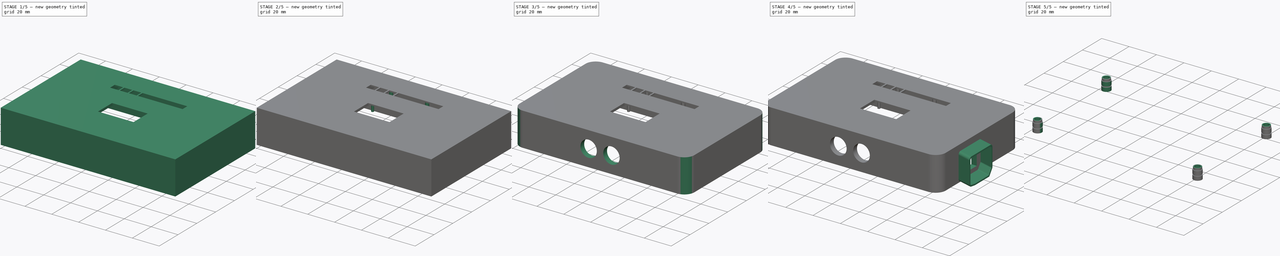
[diagram: build sequence overview — one tinted view per stage of 5, left to right]
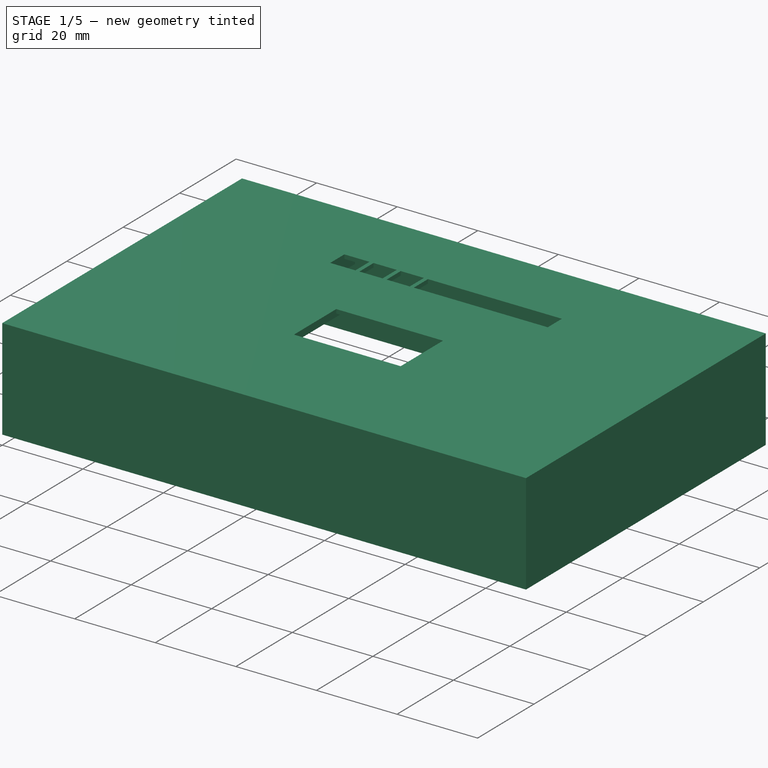
[diagram: stage 1 of 5 — iso view after this stage's code; geometry added in this stage tinted green]
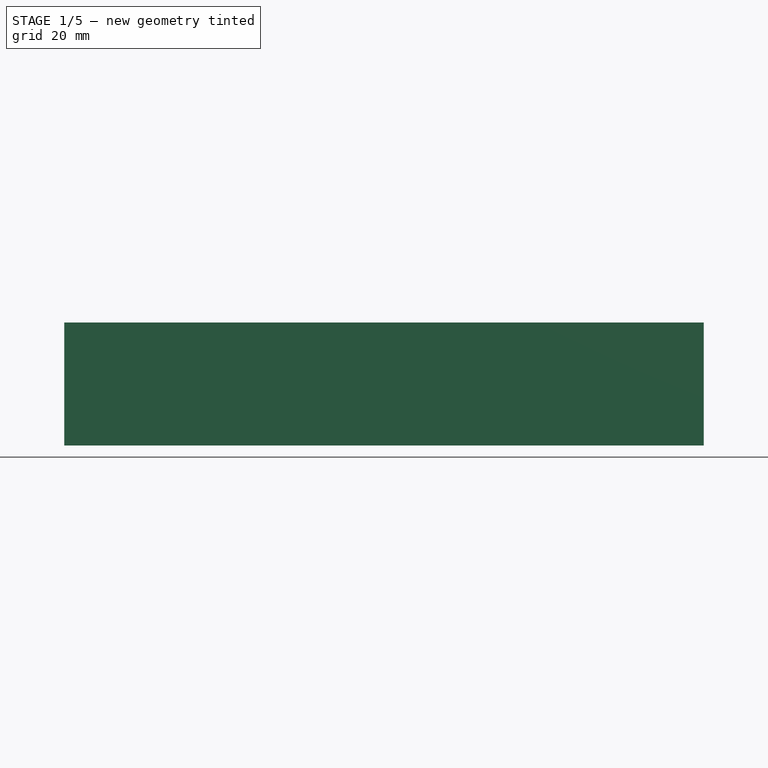
[diagram: stage 1 of 5 — front view after this stage's code; geometry added in this stage tinted green]
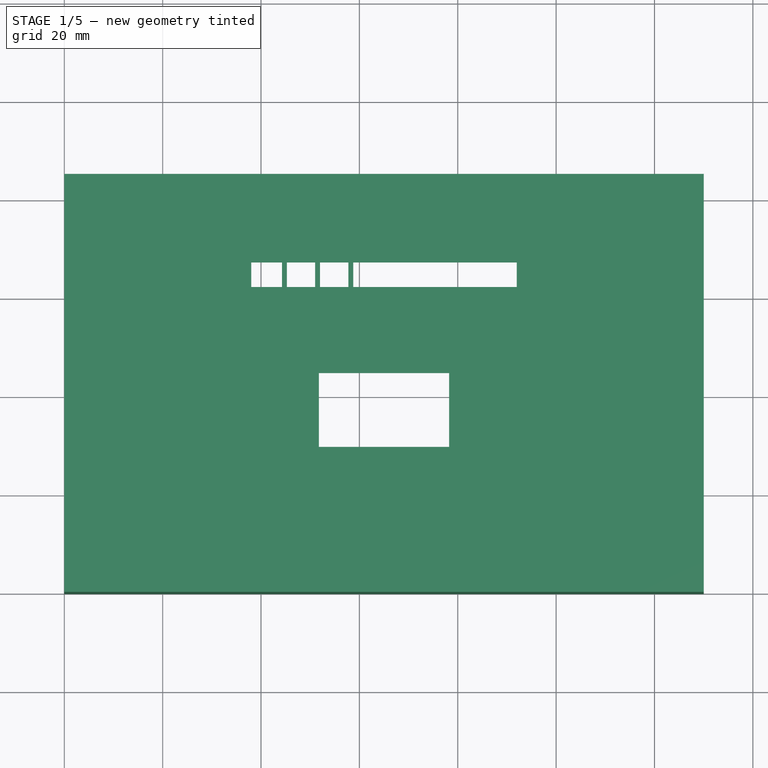
[diagram: stage 1 of 5 — top view after this stage's code; geometry added in this stage tinted green]
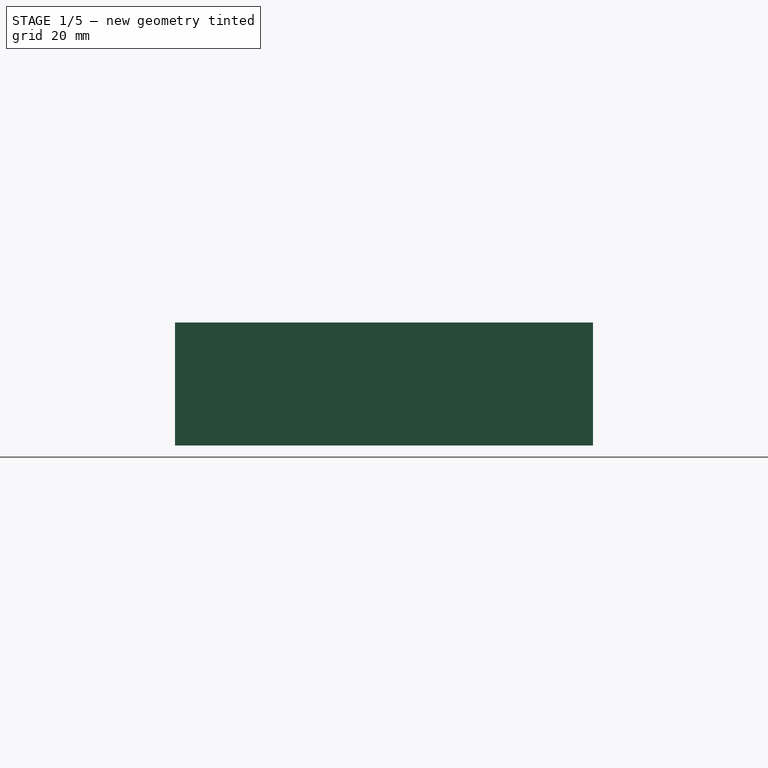
[diagram: stage 1 of 5 — right view after this stage's code; geometry added in this stage tinted green]
FCSTD DOCUMENT  (FreeCAD 0.20R27936 (Git))
Label: FrontPart
License: All rights reserved
LicenseURL: http://en.wikipedia.org/wiki/All_rights_reserved
objects: Sketcher::SketchObject×13, PartDesign::Line×11, PartDesign::Pocket×9, PartDesign::CoordinateSystem×5, Part::FeaturePython×4, PartDesign::Pad×3, PartDesign::ShapeBinder×2, PartDesign::AdditiveBox×1, PartDesign::Fillet×1, PartDesign::Body×1, App::Part×1
note: 64 computed .brp shape members not serialized (recipe doc carries the construction recipe); baked Part::Feature solids carry a one-line shape summary decoded from their .brp

FEATURE [PartDesign::AdditiveBox] Box002
  AttacherType = Attacher::AttachEngine3D
  Height = 25
  Length = 130
  Width = 85
FEATURE [Sketcher::SketchObject] Sketch001
  ExternalGeometry = -> [Box002]
  FullyConstrained = true
  MapMode = 5
  Placement = pos=(0,0,0) rot=(1,0,0;3.14159rad)
  Support = -> [Box002]
  sketch-geometry (23):
    g0: LineSegment StartX=15.8322 StartY=-4 StartZ=0 EndX=114.168 EndY=-4 EndZ=0
    g1: LineSegment StartX=126 StartY=-15.8322 StartZ=0 EndX=126 EndY=-69.1678 EndZ=0
    g2: LineSegment StartX=114.168 StartY=-81 StartZ=0 EndX=15.8322 EndY=-81 EndZ=0
    g3: LineSegment StartX=4 StartY=-69.1678 StartZ=0 EndX=4 EndY=-15.8322 EndZ=0
    g4: GeomPoint X=4 Y=-4 Z=0
    g5: GeomPoint X=126 Y=-81 Z=0
    g6: GeomPoint X=65 Y=-42.5 Z=0
    g7: ArcOfCircle CenterX=4 CenterY=-81 CenterZ=0 NormalX=0 NormalY=0 NormalZ=1 AngleXU=0 Radius=10 StartAngle=0.167448 EndAngle=1.40335
    g8: ArcOfCircle CenterX=6 CenterY=-69.1678 CenterZ=0 NormalX=0 NormalY=0 NormalZ=1 AngleXU=0 Radius=2 StartAngle=3.14159 EndAngle=4.54494
    g9: ArcOfCircle CenterX=15.8322 CenterY=-79 CenterZ=0 NormalX=0 NormalY=0 NormalZ=1 AngleXU=0 Radius=2 StartAngle=3.30904 EndAngle=4.71239
    g10: ArcOfCircle CenterX=4 CenterY=-4 CenterZ=0 NormalX=0 NormalY=0 NormalZ=1 AngleXU=0 Radius=10 StartAngle=4.87984 EndAngle=6.11574
    g11: ArcOfCircle CenterX=126 CenterY=-4 CenterZ=0 NormalX=0 NormalY=0 NormalZ=1 AngleXU=0 Radius=10 StartAngle=3.30904 EndAngle=4.54494
    g12: ArcOfCircle CenterX=126 CenterY=-81 CenterZ=0 NormalX=0 NormalY=0 NormalZ=1 AngleXU=0 Radius=10 StartAngle=1.73824 EndAngle=2.97414
    g13: LineSegment StartX=4 StartY=-81 StartZ=0 EndX=126 EndY=-81 EndZ=0
    g14: LineSegment StartX=126 StartY=-81 StartZ=0 EndX=126 EndY=-4 EndZ=0
    g15: LineSegment StartX=126 StartY=-4 StartZ=0 EndX=4 EndY=-4 EndZ=0
    g16: LineSegment StartX=4 StartY=-4 StartZ=0 EndX=4 EndY=-81 EndZ=0
    g17: ArcOfCircle CenterX=6 CenterY=-15.8322 CenterZ=0 NormalX=0 NormalY=0 NormalZ=1 AngleXU=0 Radius=2 StartAngle=1.73824 EndAngle=3.14159
    g18: ArcOfCircle CenterX=124 CenterY=-15.8322 CenterZ=0 NormalX=0 NormalY=0 NormalZ=1 AngleXU=0 Radius=2 StartAngle=0 EndAngle=1.40335
    g19: ArcOfCircle CenterX=15.8322 CenterY=-6 CenterZ=0 NormalX=0 NormalY=0 NormalZ=1 AngleXU=0 Radius=2 StartAngle=1.5708 EndAngle=2.97414
    g20: ArcOfCircle CenterX=114.168 CenterY=-6 CenterZ=0 NormalX=0 NormalY=0 NormalZ=1 AngleXU=0 Radius=2 StartAngle=0.167448 EndAngle=1.5708
    g21: ArcOfCircle CenterX=124 CenterY=-69.1678 CenterZ=0 NormalX=0 NormalY=0 NormalZ=1 AngleXU=0 Radius=2 StartAngle=4.87984 EndAngle=6.28319
    g22: ArcOfCircle CenterX=114.168 CenterY=-79 CenterZ=0 NormalX=0 NormalY=0 NormalZ=1 AngleXU=0 Radius=2 StartAngle=4.71239 EndAngle=6.11574
  constraints (56):
    c: Horizontal(g0)
    c: Horizontal(g2)
    c: Vertical(g1)
    c: Vertical(g3)
    c: PointOnObject(g4,g0)
    c: PointOnObject(g4,g3)
    c: PointOnObject(g5,g1)
    c: PointOnObject(g5,g2)
    c: Symmetric(g-6,g-4,g6)
    c: Tangent(g7,g8) = 1.5708
    c: Tangent(g3,g8) = 1.5708
    c: Tangent(g2,g9) = 1.5708
    c: Tangent(g7,g9) = 1.5708
    c: Coincident(g12,g5)
    c: Coincident(g13,g14)
    c: Coincident(g14,g15)
    c: Coincident(g15,g16)
    c: Coincident(g16,g13)
    c: Horizontal(g13)
    c: Horizontal(g15)
    c: Vertical(g14)
    c: Vertical(g16)
    c: Coincident(g13,g7)
    c: Coincident(g14,g11)
    c: Coincident(g4,g10)
    c: Symmetric(g7,g11,g6)
    c: Tangent(g3,g17) = 1.5708
    c: Tangent(g10,g17) = 1.5708
    c: Tangent(g1,g18) = 1.5708
    c: Tangent(g11,g18) = 1.5708
    c: Tangent(g10,g19) = 1.5708
    c: Tangent(g0,g19) = 1.5708
    c: Tangent(g11,g20) = 1.5708
    c: Tangent(g0,g20) = 1.5708
    c: Tangent(g1,g21) = 1.5708
    c: Tangent(g12,g21) = 1.5708
    c: Tangent(g2,g22) = 1.5708
    c: Tangent(g12,g22) = 1.5708
    c: PointOnObject(g0,g15)
    c: PointOnObject(g3,g16)
    c: PointOnObject(g1,g14)
    c: DistanceX(g-6,g7) = 4
    c: DistanceY(g-6,g7) = 4
    c: PointOnObject(g2,g13)
    c: Equal(g7,g10)
    c: Equal(g10,g11)
    c: Equal(g11,g12)
    c: Radius(g7) = 10
    c: Equal(g9,g8)
    c: Equal(g8,g19)
    c: Equal(g19,g17)
    c: Equal(g17,g20)
    c: Equal(g20,g18)
    c: Equal(g18,g21)
    c: Equal(g21,g22)
    c: Radius(g9) = 2
FEATURE [PartDesign::Pocket] Pocket001
  BaseFeature = -> Box002
  Direction = (0,0,1)
  Length = 21
  Length2 = 100
  Profile = -> Sketch001
  ReferenceAxis = -> Sketch001 [N_Axis]
  Type = 0
  expr: Length = <<Box002>>.Height - 4mm
FEATURE [Sketcher::SketchObject] Sketch002
  ExternalGeometry = -> [Pocket001]
  FullyConstrained = true
  MapMode = 5
  Placement = pos=(0,0,21) rot=(1,0,0;3.14159rad)
  Support = -> [Pocket001]
  sketch-geometry (11):
    g0: LineSegment StartX=49 StartY=-19 StartZ=0 EndX=81 EndY=-19 EndZ=0
    g1: LineSegment StartX=81 StartY=-19 StartZ=0 EndX=81 EndY=-51 EndZ=0
    g2: LineSegment StartX=81 StartY=-51 StartZ=0 EndX=49 EndY=-51 EndZ=0
    g3: LineSegment StartX=49 StartY=-51 StartZ=0 EndX=49 EndY=-19 EndZ=0
    g4: GeomPoint X=65 Y=-4 Z=0
    g5: LineSegment StartX=65 StartY=-4 StartZ=0 EndX=65 EndY=-19 EndZ=0
    g6: LineSegment StartX=37.5 StartY=-61 StartZ=0 EndX=92.5 EndY=-61 EndZ=0
    g7: LineSegment StartX=92.5 StartY=-61 StartZ=0 EndX=92.5 EndY=-71.5 EndZ=0
    g8: LineSegment StartX=92.5 StartY=-71.5 StartZ=0 EndX=37.5 EndY=-71.5 EndZ=0
    g9: LineSegment StartX=37.5 StartY=-71.5 StartZ=0 EndX=37.5 EndY=-61 EndZ=0
    g10: LineSegment StartX=65 StartY=-19 StartZ=0 EndX=65 EndY=-61 EndZ=0
  constraints (29):
    c: Coincident(g0,g1)
    c: Coincident(g1,g2)
    c: Coincident(g2,g3)
    c: Coincident(g3,g0)
    c: Horizontal(g0)
    c: Horizontal(g2)
    c: Vertical(g1)
    c: Vertical(g3)
    c: Coincident(g5,g4)
    c: Vertical(g5)
    c: Symmetric(g0,g0,g5)
    c: DistanceY(g5,g5) = 15
    c: DistanceY(g1,g1) = 32
    c: Equal(g1,g0)
    c: Coincident(g6,g7)
    c: Coincident(g7,g8)
    c: Coincident(g8,g9)
    c: Coincident(g9,g6)
    c: Horizontal(g6)
    c: Horizontal(g8)
    c: Vertical(g7)
    c: Vertical(g9)
    c: DistanceX(g6,g6) = 55
    c: DistanceY(g7,g7) = 10.5
    c: Coincident(g10,g5)
    c: Vertical(g10)
    c: Symmetric(g6,g6,g10)
    c: DistanceY(g6,g1) = 10
    c: Symmetric(g-3,g-3,g4)
FEATURE [PartDesign::Pocket] Pocket002  label="Platz OLED und LED-Strip"
  BaseFeature = -> Pocket001
  Direction = (0,0,1)
  Length = 3
  Length2 = 100
  Profile = -> Sketch002
  Type = 0
FEATURE [Sketcher::SketchObject] Sketch003
  ExternalGeometry = -> [Sketch002,Pocket002]
  FullyConstrained = true
  MapMode = 5
  Placement = pos=(0,0,21) rot=(1,0,0;3.14159rad)
  Support = -> [Pocket002]
  sketch-geometry (39):
    g0: LineSegment StartX=51.75 StartY=-29.5 StartZ=0 EndX=78.25 EndY=-29.5 EndZ=0
    g1: LineSegment StartX=78.25 StartY=-29.5 StartZ=0 EndX=78.25 EndY=-44.5 EndZ=0
    g2: LineSegment StartX=78.25 StartY=-44.5 StartZ=0 EndX=51.75 EndY=-44.5 EndZ=0
    g3: LineSegment StartX=51.75 StartY=-44.5 StartZ=0 EndX=51.75 EndY=-29.5 EndZ=0
    g4: LineSegment StartX=38 StartY=-62 StartZ=0 EndX=92 EndY=-62 EndZ=0
    g5: LineSegment StartX=92 StartY=-62 StartZ=0 EndX=92 EndY=-67 EndZ=0
    g6: LineSegment StartX=38 StartY=-67 StartZ=0 EndX=38 EndY=-62 EndZ=0
    g7: LineSegment StartX=65 StartY=-62 StartZ=0 EndX=65 EndY=-61 EndZ=0
    g8: LineSegment StartX=65 StartY=-29.5 StartZ=0 EndX=65 EndY=-19 EndZ=0
    g9: LineSegment StartX=44.75 StartY=-62 StartZ=0 EndX=44.75 EndY=-67 EndZ=0
    g10: LineSegment StartX=51.5 StartY=-62 StartZ=0 EndX=51.5 EndY=-67 EndZ=0
    g11: LineSegment StartX=58.25 StartY=-62 StartZ=0 EndX=58.25 EndY=-67 EndZ=0
    g12: LineSegment StartX=65 StartY=-62 StartZ=0 EndX=65 EndY=-67 EndZ=0
    g13: LineSegment StartX=71.75 StartY=-62 StartZ=0 EndX=71.75 EndY=-67 EndZ=0
    g14: LineSegment StartX=78.5 StartY=-62 StartZ=0 EndX=78.5 EndY=-67 EndZ=0
    g15: LineSegment StartX=85.25 StartY=-62 StartZ=0 EndX=85.25 EndY=-67 EndZ=0
    g16: LineSegment StartX=38 StartY=-67 StartZ=0 EndX=44.75 EndY=-67 EndZ=0
    g17: LineSegment StartX=44.75 StartY=-67 StartZ=0 EndX=51.5 EndY=-67 EndZ=0
    g18: LineSegment StartX=51.5 StartY=-67 StartZ=0 EndX=58.25 EndY=-67 EndZ=0
    g19: LineSegment StartX=58.25 StartY=-67 StartZ=0 EndX=65 EndY=-67 EndZ=0
    g20: LineSegment StartX=65 StartY=-67 StartZ=0 EndX=71.75 EndY=-67 EndZ=0
    g21: LineSegment StartX=71.75 StartY=-67 StartZ=0 EndX=78.5 EndY=-67 EndZ=0
    g22: LineSegment StartX=78.5 StartY=-67 StartZ=0 EndX=85.25 EndY=-67 EndZ=0
    g23: LineSegment StartX=85.25 StartY=-67 StartZ=0 EndX=92 EndY=-67 EndZ=0
    g24: LineSegment StartX=44.25 StartY=-62 StartZ=0 EndX=44.25 EndY=-67 EndZ=0
    g25: LineSegment StartX=45.25 StartY=-62 StartZ=0 EndX=45.25 EndY=-67 EndZ=0
    g26: LineSegment StartX=38 StartY=-62 StartZ=0 EndX=44.25 EndY=-62 EndZ=0
    g27: LineSegment StartX=44.25 StartY=-67 StartZ=0 EndX=38 EndY=-67 EndZ=0
    g28: LineSegment StartX=45.25 StartY=-62 StartZ=0 EndX=51 EndY=-62 EndZ=0
    g29: LineSegment StartX=45.25 StartY=-67 StartZ=0 EndX=51 EndY=-67 EndZ=0
    g30: LineSegment StartX=52 StartY=-62 StartZ=0 EndX=57.75 EndY=-62 EndZ=0
    g31: LineSegment StartX=58.75 StartY=-62 StartZ=0 EndX=58.75 EndY=-67 EndZ=0
    g32: LineSegment StartX=57.75 StartY=-67 StartZ=0 EndX=57.75 EndY=-62 EndZ=0
    g33: LineSegment StartX=52 StartY=-67 StartZ=0 EndX=52 EndY=-62 EndZ=0
    g34: LineSegment StartX=52 StartY=-67 StartZ=0 EndX=57.75 EndY=-67 EndZ=0
    g35: LineSegment StartX=51 StartY=-67 StartZ=0 EndX=51 EndY=-62 EndZ=0
    g36: LineSegment StartX=58.75 StartY=-62 StartZ=0 EndX=92 EndY=-62 EndZ=0
    g37: LineSegment StartX=92 StartY=-62 StartZ=0 EndX=92 EndY=-67 EndZ=0
    g38: LineSegment StartX=92 StartY=-67 StartZ=0 EndX=58.75 EndY=-67 EndZ=0
  constraints (110):
    c: Coincident(g0,g1)
    c: Coincident(g1,g2)
    c: Coincident(g2,g3)
    c: Coincident(g3,g0)
    c: Horizontal(g0)
    c: Horizontal(g2)
    c: Vertical(g1)
    c: Vertical(g3)
    c: DistanceX(g0,g0) = 26.5
    c: DistanceY(g1,g1) = 15
    c: Coincident(g4,g5)
    c: Coincident(g6,g4)
    c: Horizontal(g4)
    c: Vertical(g5)
    c: Vertical(g6)
    c: DistanceX(g4,g-3) = 0.5
    c: Vertical(g7)
    c: Symmetric(g4,g4,g7)
    c: Symmetric(g-3,g-4,g7)
    c: DistanceY(g5,g5) = 5
    c: DistanceY(g4,g-3) = 1
    c: Vertical(g8)
    c: Symmetric(g0,g0,g8)
    c: DistanceY(g8,g8) = 10.5
    c: Symmetric(g-5,g-5,g8)
    c: PointOnObject(g9,g4)
    c: Vertical(g9)
    c: PointOnObject(g10,g4)
    c: Vertical(g10)
    c: PointOnObject(g11,g4)
    c: Vertical(g11)
    c: PointOnObject(g12,g4)
    c: Vertical(g12)
    c: PointOnObject(g13,g4)
    c: Vertical(g13)
    c: PointOnObject(g14,g4)
    c: PointOnObject(g15,g4)
    c: Vertical(g15)
    c: Vertical(g14)
    c: Coincident(g16,g6)
    c: Coincident(g16,g9)
    c: Horizontal(g16)
    c: Coincident(g17,g9)
    c: Coincident(g17,g10)
    c: Horizontal(g17)
    c: Coincident(g18,g10)
    c: Coincident(g18,g11)
    c: Horizontal(g18)
    c: Coincident(g19,g11)
    c: Coincident(g19,g12)
    c: Horizontal(g19)
    c: Coincident(g20,g13)
    c: Horizontal(g20)
    c: Coincident(g21,g14)
    c: Horizontal(g21)
    c: Coincident(g22,g15)
    c: Horizontal(g22)
    c: Coincident(g23,g15)
    c: Coincident(g23,g5)
    c: Horizontal(g23)
    c: Equal(g16,g17)
    c: Equal(g17,g18)
    c: Equal(g18,g19)
    c: Equal(g19,g20)
    c: Equal(g20,g21)
    c: Equal(g21,g22)
    c: Equal(g22,g23)
    c: Coincident(g22,g14)
    c: Coincident(g13,g21)
    c: Coincident(g20,g12)
    c: PointOnObject(g24,g4)
    c: PointOnObject(g24,g16)
    c: Vertical(g24)
    c: PointOnObject(g25,g17)
    c: Vertical(g25)
    c: Symmetric(g24,g25,g9)
    c: Coincident(g26,g6)
    c: Coincident(g26,g24)
    c: Coincident(g27,g24)
    c: Coincident(g27,g6)
    c: DistanceX(g24,g25) = 1
    c: Coincident(g28,g25)
    c: PointOnObject(g28,g4)
    c: Coincident(g29,g25)
    c: PointOnObject(g29,g17)
    c: PointOnObject(g30,g4)
    c: PointOnObject(g31,g19)
    c: Vertical(g31)
    c: PointOnObject(g32,g18)
    c: Coincident(g32,g30)
    c: Vertical(g32)
    c: PointOnObject(g33,g18)
    c: Coincident(g33,g30)
    c: Coincident(g34,g33)
    c: Coincident(g34,g32)
    c: Vertical(g33)
    c: Coincident(g35,g29)
    c: Coincident(g35,g28)
    c: Vertical(g35)
    c: Symmetric(g28,g30,g10)
    c: DistanceX(g28,g30) = 1
    c: DistanceX(g30,g31) = 1
    c: Symmetric(g30,g31,g11)
    c: Coincident(g36,g4)
    c: Coincident(g37,g36)
    c: Vertical(g37)
    c: Coincident(g38,g31)
    c: Horizontal(g38)
    c: Coincident(g36,g31)
    c: Coincident(g38,g37)
FEATURE [PartDesign::Pocket] Pocket003  label="Sichtausschnitt"
  BaseFeature = -> Pocket002
  Direction = (0,0,1)
  Length = 1.01
  Length2 = 100
  Profile = -> Sketch003
  ReferenceAxis = -> Sketch003 [N_Axis]
  Type = 1
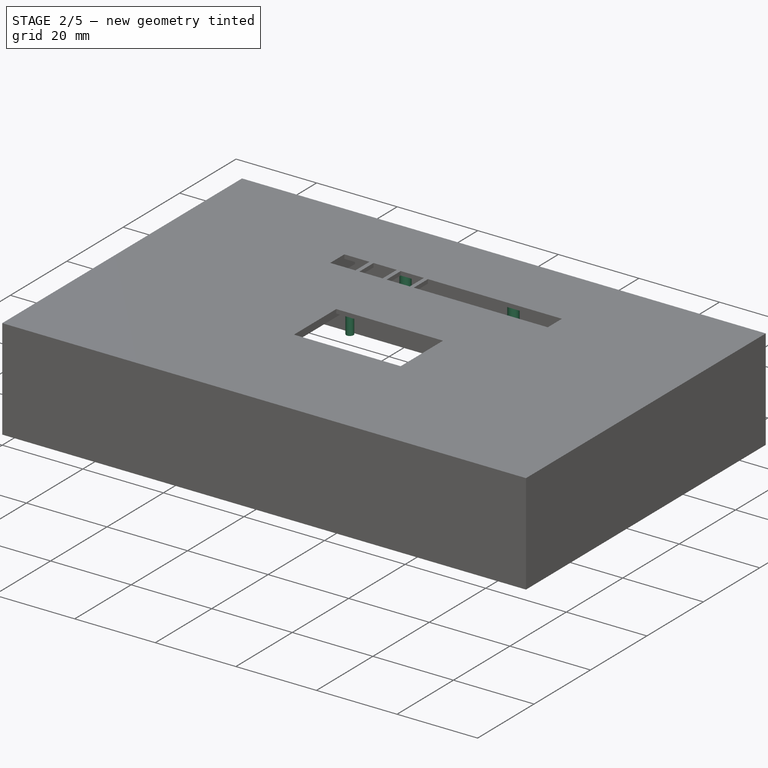
[diagram: stage 2 of 5 — iso view after this stage's code; geometry added in this stage tinted green]
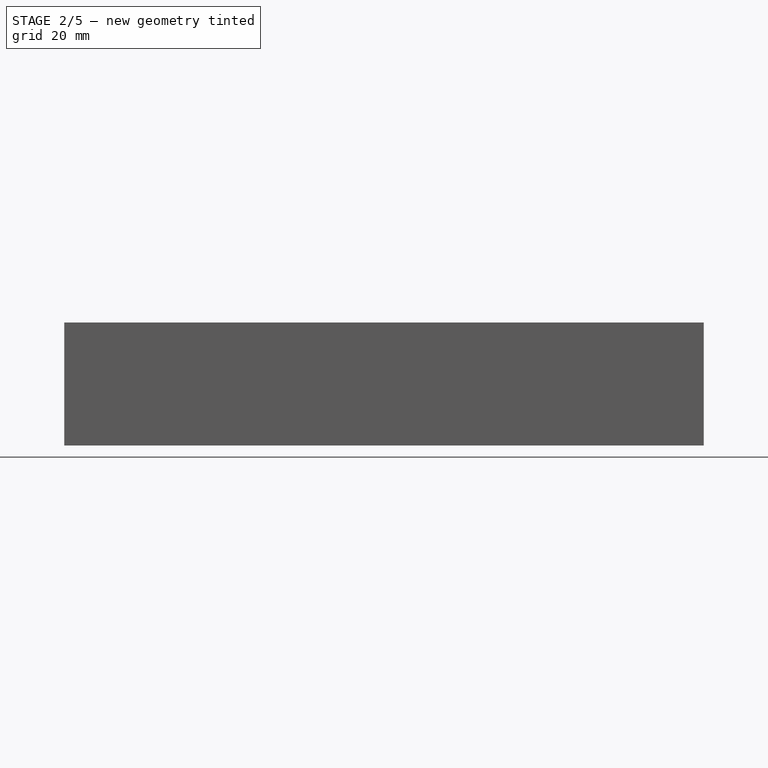
[diagram: stage 2 of 5 — front view after this stage's code; geometry added in this stage tinted green]
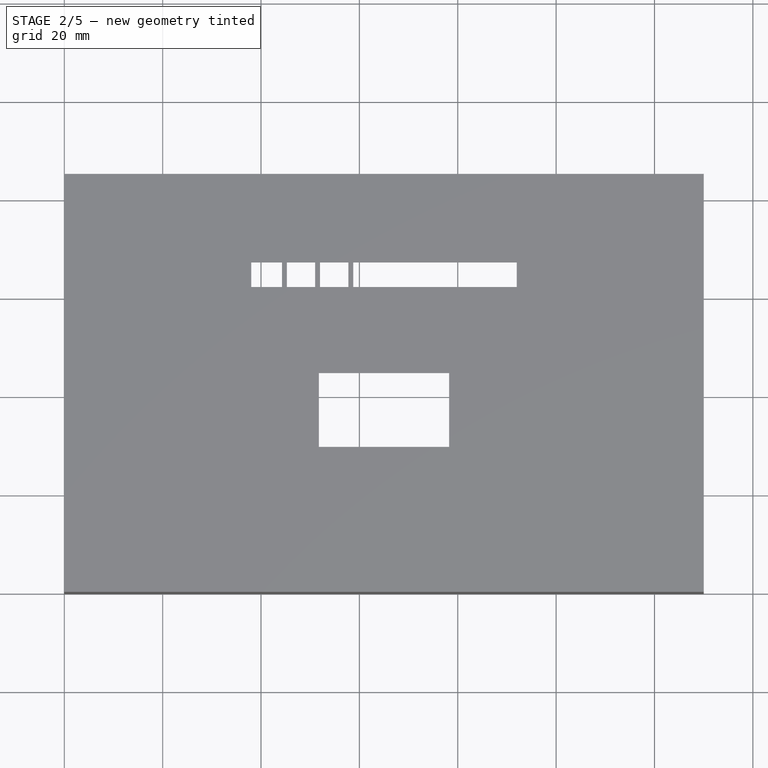
[diagram: stage 2 of 5 — top view after this stage's code; geometry added in this stage tinted green]
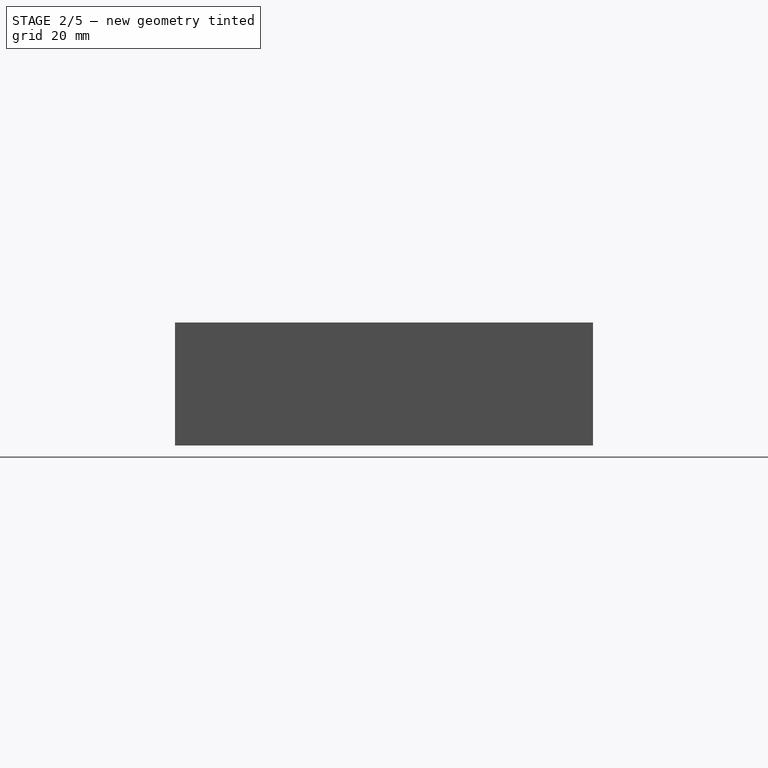
[diagram: stage 2 of 5 — right view after this stage's code; geometry added in this stage tinted green]
FEATURE [Sketcher::SketchObject] Sketch004  label="Sketch Halter OLED"
  ExternalGeometry = -> [Sketch002]
  FullyConstrained = true
  MapMode = 5
  Placement = pos=(0,0,24) rot=(1,0,0;3.14159rad)
  Support = -> [Pocket003]
  sketch-geometry (9):
    g0: Circle CenterX=53.55 CenterY=-23.25 CenterZ=0 NormalX=0 NormalY=0 NormalZ=1 AngleXU=0 Radius=0.9
    g1: Circle CenterX=76.45 CenterY=-23.25 CenterZ=0 NormalX=0 NormalY=0 NormalZ=1 AngleXU=0 Radius=0.9
    g2: Circle CenterX=76.45 CenterY=-46.75 CenterZ=0 NormalX=0 NormalY=0 NormalZ=1 AngleXU=0 Radius=0.9
    g3: Circle CenterX=53.55 CenterY=-46.75 CenterZ=0 NormalX=0 NormalY=0 NormalZ=1 AngleXU=0 Radius=0.9
    g4: LineSegment StartX=53.55 StartY=-23.25 StartZ=0 EndX=76.45 EndY=-23.25 EndZ=0
    g5: LineSegment StartX=76.45 StartY=-23.25 StartZ=0 EndX=76.45 EndY=-46.75 EndZ=0
    g6: LineSegment StartX=76.45 StartY=-46.75 StartZ=0 EndX=53.55 EndY=-46.75 EndZ=0
    g7: LineSegment StartX=53.55 StartY=-46.75 StartZ=0 EndX=53.55 EndY=-23.25 EndZ=0
    g8: GeomPoint X=65 Y=-35 Z=0
  constraints (20):
    c: Coincident(g4,g5)
    c: Coincident(g5,g6)
    c: Coincident(g6,g7)
    c: Coincident(g7,g4)
    c: Horizontal(g4)
    c: Horizontal(g6)
    c: Vertical(g5)
    c: Vertical(g7)
    c: Coincident(g4,g0)
    c: Coincident(g5,g2)
    c: Coincident(g1,g4)
    c: Coincident(g3,g6)
    c: Equal(g0,g1)
    c: Equal(g1,g2)
    c: Equal(g2,g3)
    c: Diameter(g1) = 1.8
    c: DistanceX(g4,g4) = 22.9
    c: DistanceY(g5,g5) = 23.5
    c: Symmetric(g-4,g-6,g8)
    c: Symmetric(g3,g1,g8)
FEATURE [PartDesign::Pad] Pad  label="Halter OLED"
  BaseFeature = -> Pocket003
  Direction = (0,0,-1)
  Length = 5
  Length2 = 100
  Profile = -> Sketch004
  ReferenceAxis = -> Sketch004 [N_Axis]
  Type = 0
FEATURE [Sketcher::SketchObject] Sketch005
  ExternalGeometry = -> [Sketch002]
  FullyConstrained = true
  MapMode = 5
  Placement = pos=(0,0,21) rot=(1,0,0;3.14159rad)
  Support = -> [Pad]
  sketch-geometry (26):
    g0: LineSegment StartX=50 StartY=-11 StartZ=0 EndX=80 EndY=-11 EndZ=0
    g1: LineSegment StartX=80 StartY=-11 StartZ=0 EndX=80 EndY=-18 EndZ=0
    g2: LineSegment StartX=80 StartY=-18 StartZ=0 EndX=50 EndY=-18 EndZ=0
    g3: LineSegment StartX=50 StartY=-18 StartZ=0 EndX=50 EndY=-11 EndZ=0
    g4: LineSegment StartX=82 StartY=-20 StartZ=0 EndX=89 EndY=-20 EndZ=0
    g5: LineSegment StartX=89 StartY=-20 StartZ=0 EndX=89 EndY=-50 EndZ=0
    g6: LineSegment StartX=89 StartY=-50 StartZ=0 EndX=82 EndY=-50 EndZ=0
    g7: LineSegment StartX=82 StartY=-50 StartZ=0 EndX=82 EndY=-20 EndZ=0
    g8: LineSegment StartX=41 StartY=-20 StartZ=0 EndX=48 EndY=-20 EndZ=0
    g9: LineSegment StartX=48 StartY=-20 StartZ=0 EndX=48 EndY=-50 EndZ=0
    g10: LineSegment StartX=48 StartY=-50 StartZ=0 EndX=41 EndY=-50 EndZ=0
    g11: LineSegment StartX=41 StartY=-50 StartZ=0 EndX=41 EndY=-20 EndZ=0
    g12: LineSegment StartX=50 StartY=-52 StartZ=0 EndX=80 EndY=-52 EndZ=0
    g13: LineSegment StartX=80 StartY=-52 StartZ=0 EndX=80 EndY=-59 EndZ=0
    g14: LineSegment StartX=80 StartY=-59 StartZ=0 EndX=50 EndY=-59 EndZ=0
    g15: LineSegment StartX=50 StartY=-59 StartZ=0 EndX=50 EndY=-52 EndZ=0
    g16: LineSegment StartX=48 StartY=-18 StartZ=0 EndX=82 EndY=-18 EndZ=0
    g17: LineSegment StartX=82 StartY=-18 StartZ=0 EndX=82 EndY=-52 EndZ=0
    g18: LineSegment StartX=82 StartY=-52 StartZ=0 EndX=48 EndY=-52 EndZ=0
    g19: LineSegment StartX=48 StartY=-52 StartZ=0 EndX=48 EndY=-18 EndZ=0
    g20: GeomPoint X=65 Y=-35 Z=0
    g21: GeomPoint X=48 Y=-35 Z=0
    g22: GeomPoint X=116 Y=-18 Z=0
    g23: GeomPoint X=82 Y=-35 Z=0
    g24: GeomPoint X=65 Y=-52 Z=0
    g25: GeomPoint X=65 Y=-18 Z=0
  constraints (61):
    c: Coincident(g0,g1)
    c: Coincident(g1,g2)
    c: Coincident(g2,g3)
    c: Coincident(g3,g0)
    c: Horizontal(g0)
    c: Horizontal(g2)
    c: Vertical(g1)
    c: Vertical(g3)
    c: Coincident(g4,g5)
    c: Coincident(g5,g6)
    c: Coincident(g6,g7)
    c: Coincident(g7,g4)
    c: Horizontal(g4)
    c: Horizontal(g6)
    c: Vertical(g5)
    c: Vertical(g7)
    c: Coincident(g8,g9)
    c: Coincident(g9,g10)
    c: Coincident(g10,g11)
    c: Coincident(g11,g8)
    c: Horizontal(g8)
    c: Horizontal(g10)
    c: Vertical(g9)
    c: Vertical(g11)
    c: Coincident(g12,g13)
    c: Coincident(g13,g14)
    c: Coincident(g14,g15)
    c: Coincident(g15,g12)
    c: Horizontal(g12)
    c: Horizontal(g14)
    c: Vertical(g13)
    c: Vertical(g15)
    c: Equal(g4,g1)
    c: Equal(g1,g8)
    c: Equal(g8,g13)
    c: Coincident(g16,g17)
    c: Coincident(g17,g18)
    c: Coincident(g18,g19)
    c: Coincident(g19,g16)
    c: DistanceX(g-4,g16) = 1
    c: DistanceY(g-4,g16) = 1
    c: Symmetric(g16,g18,g20)
    c: Symmetric(g-6,g-4,g20)
    c: DistanceY(g15,g15) = 7
    c: Vertical(g19)
    c: Horizontal(g16)
    c: PointOnObject(g12,g18)
    c: Vertical(g17)
    c: Equal(g0,g11)
    c: Equal(g11,g5)
    c: Equal(g5,g14)
    c: DistanceY(g11,g11) = 30
    c: Symmetric(g18,g17,g24)
    c: Symmetric(g6,g4,g23)
    c: Symmetric(g16,g22,g16)
    c: Symmetric(g16,g18,g21)
    c: Symmetric(g8,g9,g21)
    c: Symmetric(g17,g16,g23)
    c: Symmetric(g12,g12,g24)
    c: Symmetric(g2,g1,g25)
    c: Symmetric(g16,g16,g25)
FEATURE [PartDesign::Pocket] Pocket004  label="Ausschnitte  Touch"
  BaseFeature = -> Pad
  Direction = (0,0,1)
  Length = 3.5
  Length2 = 100
  Profile = -> Sketch005
  Type = 0
FEATURE [Sketcher::SketchObject] Sketch007
  ExternalGeometry = -> [Pocket004]
  FullyConstrained = true
  MapMode = 5
  Placement = pos=(0,0,24) rot=(1,0,0;3.14159rad)
  Support = -> [Pocket004]
  sketch-geometry (5):
    g0: Circle CenterX=51.6 CenterY=-69.25 CenterZ=0 NormalX=0 NormalY=0 NormalZ=1 AngleXU=0 Radius=1.25
    g1: Circle CenterX=78.4 CenterY=-69.25 CenterZ=0 NormalX=0 NormalY=0 NormalZ=1 AngleXU=0 Radius=1.25
    g2: LineSegment StartX=51.6 StartY=-69.25 StartZ=0 EndX=78.4 EndY=-69.25 EndZ=0
    g3: LineSegment StartX=65 StartY=-67 StartZ=0 EndX=65 EndY=-71.5 EndZ=0
    g4: GeomPoint X=65 Y=-69.25 Z=0
  constraints (11):
    c: Coincident(g2,g0)
    c: Coincident(g2,g1)
    c: Horizontal(g2)
    c: Equal(g1,g0)
    c: Diameter(g0) = 2.5
    c: DistanceX(g2,g2) = 26.8
    c: Vertical(g3)
    c: Symmetric(g0,g1,g4)
    c: Symmetric(g3,g3,g4)
    c: Symmetric(g-3,g-3,g3)
    c: PointOnObject(g3,g-4)
FEATURE [PartDesign::Pad] Pad001  label="Halter LED Strip"
  BaseFeature = -> Pocket004
  Direction = (0,0,-1)
  Length = 5
  Length2 = 10
  Profile = -> Sketch007
  ReferenceAxis = -> Sketch007 [N_Axis]
  Type = 0
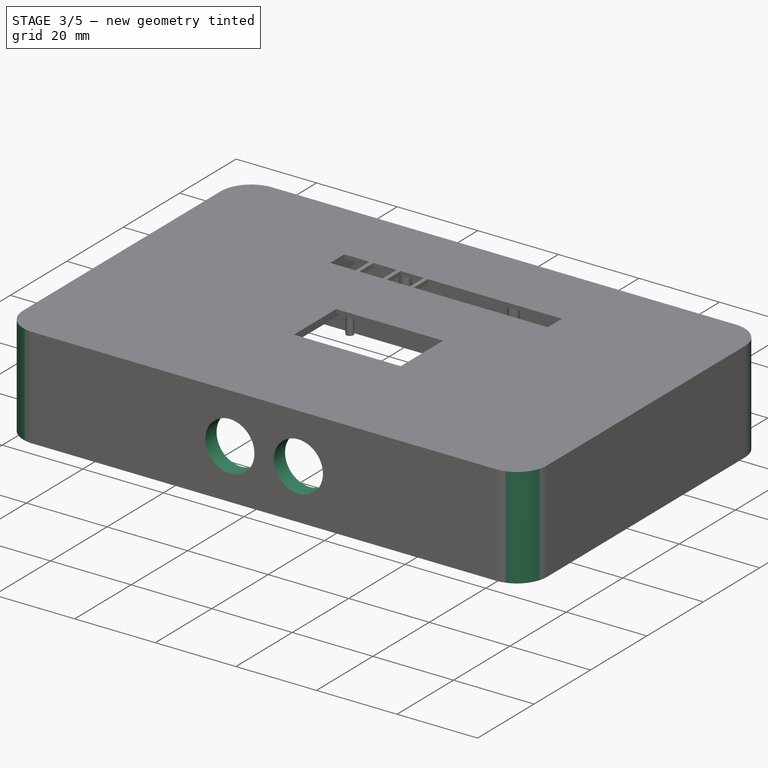
[diagram: stage 3 of 5 — iso view after this stage's code; geometry added in this stage tinted green]
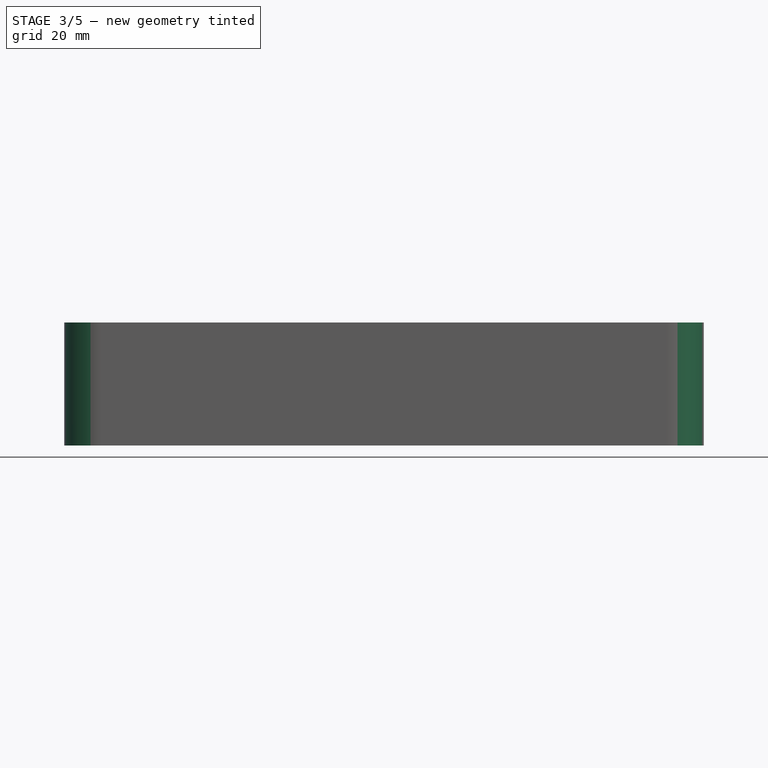
[diagram: stage 3 of 5 — front view after this stage's code; geometry added in this stage tinted green]
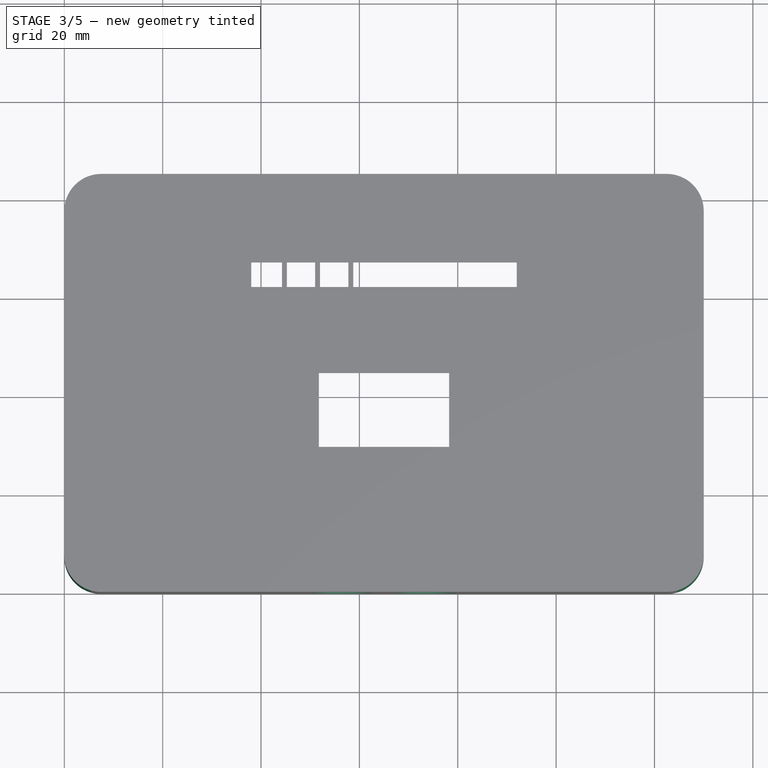
[diagram: stage 3 of 5 — top view after this stage's code; geometry added in this stage tinted green]
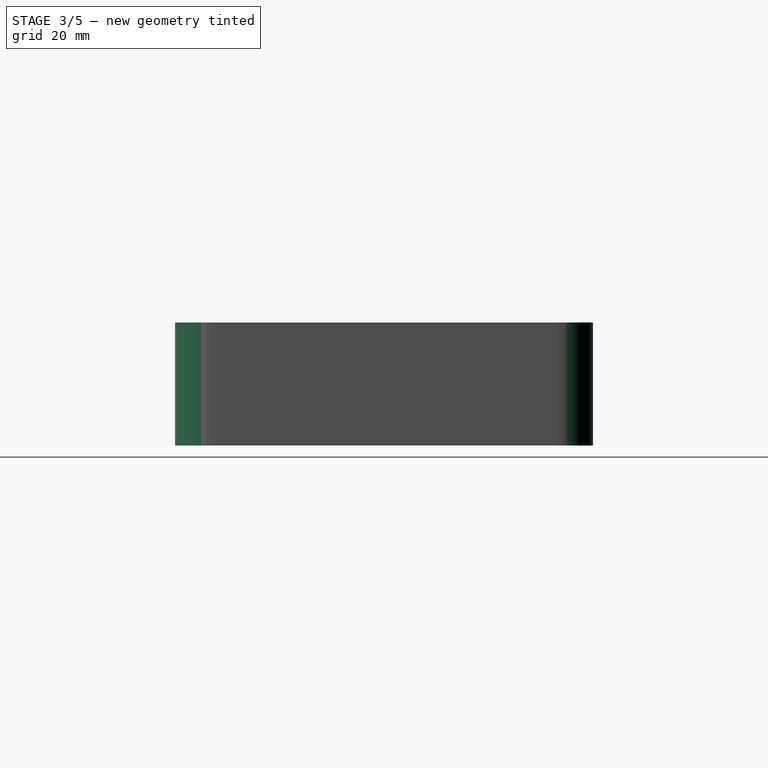
[diagram: stage 3 of 5 — right view after this stage's code; geometry added in this stage tinted green]
FEATURE [PartDesign::Fillet] Fillet
  Base = -> Pad001 [Edge6,Edge31,Edge3,Edge1]
  BaseFeature = -> Pad001
  Radius = 7.5
  SupportTransform = false
  UseAllEdges = false
FEATURE [Sketcher::SketchObject] Sketch008
  ExternalGeometry = -> [Pad001]
  FullyConstrained = true
  MapMode = 5
  Placement = pos=(0,0,21) rot=(1,0,0;3.14159rad)
  Support = -> [Pad001]
  sketch-geometry (24):
    g0: LineSegment StartX=8 StartY=-40.6678 StartZ=0 EndX=28 EndY=-40.6678 EndZ=0
    g1: LineSegment StartX=28 StartY=-40.6678 StartZ=0 EndX=28 EndY=-65.1678 EndZ=0
    g2: LineSegment StartX=28 StartY=-65.1678 StartZ=0 EndX=8 EndY=-65.1678 EndZ=0
    g3: LineSegment StartX=8 StartY=-65.1678 StartZ=0 EndX=8 EndY=-40.6678 EndZ=0
    g4: GeomPoint X=8 Y=-40.6678 Z=0
    g5: GeomPoint X=4 Y=-40.6678 Z=0
    g6: LineSegment StartX=4 StartY=-40.6678 StartZ=0 EndX=8 EndY=-40.6678 EndZ=0
    g7: LineSegment StartX=112.5 StartY=-36.6678 StartZ=0 EndX=124 EndY=-36.6678 EndZ=0
    g8: LineSegment StartX=124 StartY=-36.6678 StartZ=0 EndX=124 EndY=-67.1678 EndZ=0
    g9: LineSegment StartX=124 StartY=-67.1678 StartZ=0 EndX=112.5 EndY=-67.1678 EndZ=0
    g10: LineSegment StartX=112.5 StartY=-67.1678 StartZ=0 EndX=112.5 EndY=-36.6678 EndZ=0
    g11: LineSegment StartX=6 StartY=-15.8322 StartZ=0 EndX=25 EndY=-15.8322 EndZ=0
    g12: LineSegment StartX=25 StartY=-15.8322 StartZ=0 EndX=25 EndY=-34.8322 EndZ=0
    g13: LineSegment StartX=25 StartY=-34.8322 StartZ=0 EndX=6 EndY=-34.8322 EndZ=0
    g14: LineSegment StartX=6 StartY=-34.8322 StartZ=0 EndX=6 EndY=-15.8322 EndZ=0
    g15: Circle CenterX=11 CenterY=-32.8322 CenterZ=0 NormalX=0 NormalY=0 NormalZ=1 AngleXU=0 Radius=0.9
    g16: Circle CenterX=11 CenterY=-17.8322 CenterZ=0 NormalX=0 NormalY=0 NormalZ=1 AngleXU=0 Radius=0.9
    g17: GeomPoint X=15.5 Y=-25.3322 Z=0
    g18: LineSegment StartX=4 StartY=-15.8322 StartZ=0 EndX=6 EndY=-15.8322 EndZ=0
    g19: LineSegment StartX=15.5 StartY=-25.3322 StartZ=0 EndX=6 EndY=-25.3322 EndZ=0
    g20: LineSegment StartX=99 StartY=-58.5 StartZ=0 EndX=110.5 EndY=-58.5 EndZ=0
    g21: LineSegment StartX=110.5 StartY=-58.5 StartZ=0 EndX=110.5 EndY=-79 EndZ=0
    g22: LineSegment StartX=110.5 StartY=-79 StartZ=0 EndX=99 EndY=-79 EndZ=0
    g23: LineSegment StartX=99 StartY=-79 StartZ=0 EndX=99 EndY=-58.5 EndZ=0
  constraints (64):
    c: Coincident(g0,g1)
    c: Coincident(g1,g2)
    c: Coincident(g2,g3)
    c: Coincident(g3,g0)
    c: Horizontal(g0)
    c: Horizontal(g2)
    c: Vertical(g1)
    c: Vertical(g3)
    c: DistanceX(g0,g0) = 20
    c: Coincident(g6,g5)
    c: Coincident(g6,g4)
    c: Horizontal(g6)
    c: DistanceX(g6,g6) = 4
    c: DistanceY(g3,g3) = 24.5
    c: Coincident(g0,g4)
    c: Coincident(g7,g8)
    c: Coincident(g8,g9)
    c: Coincident(g9,g10)
    c: Coincident(g10,g7)
    c: Horizontal(g7)
    c: Horizontal(g9)
    c: Vertical(g8)
    c: Vertical(g10)
    c: DistanceY(g8,g8) = 30.5
    c: DistanceX(g7,g7) = 11.5
    c: PointOnObject(g5,g-3)
    c: DistanceY(g-3,g2) = 4
    c: Coincident(g11,g12)
    c: Coincident(g12,g13)
    c: Coincident(g13,g14)
    c: Coincident(g14,g11)
    c: Horizontal(g11)
    c: Horizontal(g13)
    c: Vertical(g12)
    c: Vertical(g14)
    c: Equal(g15,g16)
    c: Diameter(g16) = 1.8
    c: DistanceX(g13,g13) = 19
    c: Equal(g13,g12)
    c: Symmetric(g13,g11,g17)
    c: DistanceY(g15,g16) = 15
    c: Coincident(g18,g-3)
    c: Coincident(g18,g11)
    c: Horizontal(g18)
    c: DistanceX(g18,g18) = 2
    c: DistanceY(g-4,g8) = 2
    c: DistanceX(g8,g-4) = 2
    c: DistanceX(g13,g15) = 5
    c: Coincident(g19,g17)
    c: PointOnObject(g19,g14)
    c: Horizontal(g19)
    c: Symmetric(g15,g16,g19)
    c: Coincident(g20,g21)
    c: Coincident(g21,g22)
    c: Coincident(g22,g23)
    c: Coincident(g23,g20)
    c: Horizontal(g20)
    c: Horizontal(g22)
    c: Vertical(g21)
    c: Vertical(g23)
    c: Equal(g7,g20)
    c: DistanceY(g21,g21) = 20.5
    c: DistanceX(g21,g9) = 2
    c: DistanceY(g-5,g21) = 2
FEATURE [Sketcher::SketchObject] Sketch
  ExternalGeometry = -> [Fillet]
  FullyConstrained = true
  MapMode = 5
  Placement = pos=(0,0,0) rot=(1,0,0;3.14159rad)
  Support = -> [Fillet]
  sketch-geometry (10):
    g0: LineSegment StartX=123.366 StartY=-6.63388 StartZ=0 EndX=6.63388 EndY=-6.63388 EndZ=0
    g1: LineSegment StartX=6.63388 StartY=-6.63388 StartZ=0 EndX=6.63388 EndY=-78.3661 EndZ=0
    g2: LineSegment StartX=6.63388 StartY=-78.3661 StartZ=0 EndX=123.366 EndY=-78.3661 EndZ=0
    g3: LineSegment StartX=123.366 StartY=-78.3661 StartZ=0 EndX=123.366 EndY=-6.63388 EndZ=0
    g4: Circle CenterX=6.63388 CenterY=-6.63388 CenterZ=0 NormalX=0 NormalY=0 NormalZ=1 AngleXU=0 Radius=2.8
    g5: Circle CenterX=6.63388 CenterY=-78.3661 CenterZ=0 NormalX=0 NormalY=0 NormalZ=1 AngleXU=0 Radius=2.8
    g6: Circle CenterX=123.366 CenterY=-78.3661 CenterZ=0 NormalX=0 NormalY=0 NormalZ=1 AngleXU=0 Radius=2.8
    g7: Circle CenterX=123.366 CenterY=-6.63388 CenterZ=0 NormalX=0 NormalY=0 NormalZ=1 AngleXU=0 Radius=2.8
    g8: LineSegment StartX=2.1967 StartY=-2.1967 StartZ=0 EndX=11.0711 EndY=-11.0711 EndZ=0
    g9: GeomPoint X=65 Y=-42.5 Z=0
  constraints (23):
    c: Coincident(g0,g1)
    c: Coincident(g1,g2)
    c: Coincident(g2,g3)
    c: Coincident(g3,g0)
    c: Horizontal(g0)
    c: Horizontal(g2)
    c: Vertical(g1)
    c: Vertical(g3)
    c: Coincident(g4,g0)
    c: Coincident(g5,g1)
    c: Coincident(g6,g2)
    c: Diameter(g6) = 5.6
    c: Coincident(g7,g0)
    c: Equal(g4,g5)
    c: Equal(g5,g6)
    c: Equal(g7,g6)
    c: PointOnObject(g8,g-4)
    c: PointOnObject(g8,g-3)
    c: Symmetric(g8,g8,g4)
    c: PointOnObject(g-4,g8)
    c: PointOnObject(g-3,g8)
    c: Symmetric(g4,g6,g9)
    c: Symmetric(g-3,g-5,g9)
FEATURE [PartDesign::Pocket] Pocket
  BaseFeature = -> Fillet
  Direction = (0,0,1)
  Length = 10
  Length2 = 5
  Profile = -> Sketch
  ReferenceAxis = -> Sketch [N_Axis]
  Type = 0
FEATURE [PartDesign::Pocket] Pocket006  label="Pocket - Vertiefung ESP32, VS"
  BaseFeature = -> Pocket
  Direction = (0,0,1)
  Length = 2
  Length2 = 5
  Profile = -> Sketch008
  ReferenceAxis = -> Sketch008 [N_Axis]
  Refine = true
  Type = 0
FEATURE [PartDesign::CoordinateSystem] LCS_3  label="LCS_BotLeft"
  AttacherType = Attacher::AttachEngine3D
  MapMode = 2
  Support = -> [Pocket]
FEATURE [PartDesign::CoordinateSystem] LCS_2
  AttacherType = Attacher::AttachEngine3D
  AttachmentOffset = pos=(0,0,0) rot=(1,0,0;3.14159rad)
  MapMode = 5
  Support = -> [Pocket]
FEATURE [PartDesign::Line] HoleAxis_1  label="HoleM4aussen_1"
  AttacherType = Attacher::AttachEngineLine
  Length = 5.63627
  MapMode = 19
  Placement = pos=(6.65146,6.65148,0) rot=(-1,0,0;3.14159rad)
  ResizeMode = 1
  Support = -> [HeatSet002]
FEATURE [PartDesign::Line] HoleAxis_2  label="HoleM4aussen_2"
  AttacherType = Attacher::AttachEngineLine
  Length = 5.63627
  MapMode = 19
  Placement = pos=(123.349,6.65148,0) rot=(-1,0,0;3.14159rad)
  ResizeMode = 1
  Support = -> [HeatSet003]
FEATURE [PartDesign::Line] HoleAxis_3  label="HoleM4aussen_3"
  AttacherType = Attacher::AttachEngineLine
  Length = 5.63627
  MapMode = 19
  Placement = pos=(6.65146,78.3485,0) rot=(-1,0,0;3.14159rad)
  ResizeMode = 1
  Support = -> [HeatSet001]
FEATURE [Sketcher::SketchObject] Sketch009
  ExternalGeometry = -> [Pocket006]
  FullyConstrained = true
  MapMode = 5
  Placement = pos=(0,0,0) rot=(1,0,0;1.5708rad)
  Support = -> [Pocket006]
  sketch-geometry (7):
    g0: Circle CenterX=56.5 CenterY=12.5 CenterZ=0 NormalX=0 NormalY=0 NormalZ=1 AngleXU=0 Radius=6.1
    g1: Circle CenterX=73.5 CenterY=12.5 CenterZ=0 NormalX=0 NormalY=0 NormalZ=1 AngleXU=0 Radius=6.1
    g2: LineSegment StartX=56.5 StartY=12.5 StartZ=0 EndX=73.5 EndY=12.5 EndZ=0
    g3: Circle CenterX=56.5 CenterY=12.5 CenterZ=0 NormalX=0 NormalY=0 NormalZ=1 AngleXU=0 Radius=8.5
    g4: Circle CenterX=73.5 CenterY=12.5 CenterZ=0 NormalX=0 NormalY=0 NormalZ=1 AngleXU=0 Radius=8.5
    g5: GeomPoint X=65 Y=21 Z=0
    g6: LineSegment StartX=65 StartY=21 StartZ=0 EndX=65 EndY=0 EndZ=0
  constraints (15):
    c: Equal(g0,g1)
    c: Coincident(g2,g0)
    c: Coincident(g2,g1)
    c: Horizontal(g2)
    c: Diameter(g1) = 12.2
    c: Coincident(g3,g0)
    c: Diameter(g3) = 17
    c: Coincident(g4,g1)
    c: Equal(g3,g4)
    c: Tangent(g4,g3)
    c: Tangent(g3,g-4)
    c: Symmetric(g-4,g-4,g5)
    c: Coincident(g6,g5)
    c: PointOnObject(g6,g-1)
    c: Symmetric(g1,g0,g6)
FEATURE [PartDesign::Pocket] Pocket007  label="Pocket - Taster"
  BaseFeature = -> Pocket006
  Direction = (0,1,-2e-16)
  Length = 5
  Length2 = 5
  Profile = -> Sketch009
  ReferenceAxis = -> Sketch009 [N_Axis]
  Refine = true
  Type = 2
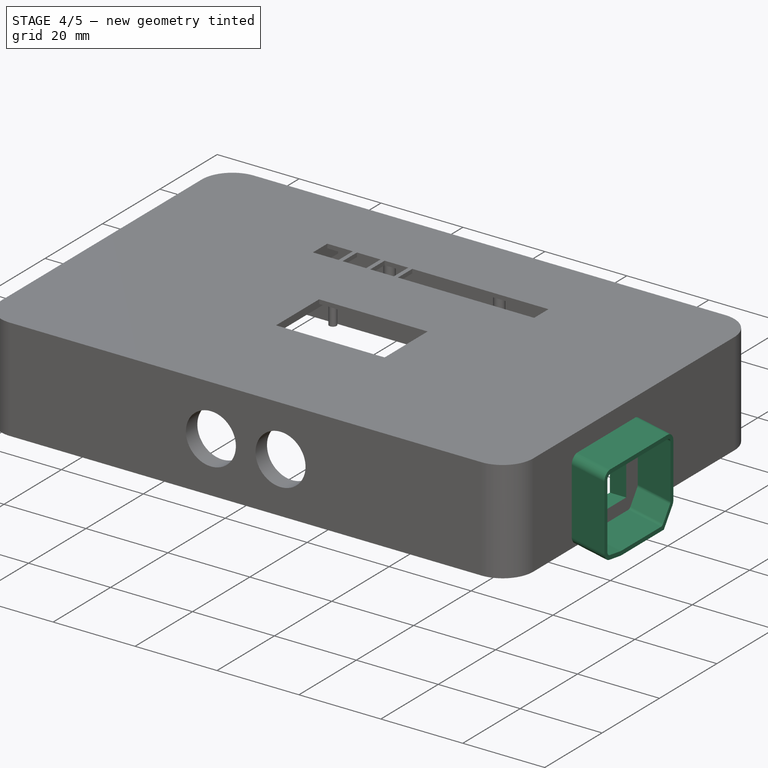
[diagram: stage 4 of 5 — iso view after this stage's code; geometry added in this stage tinted green]
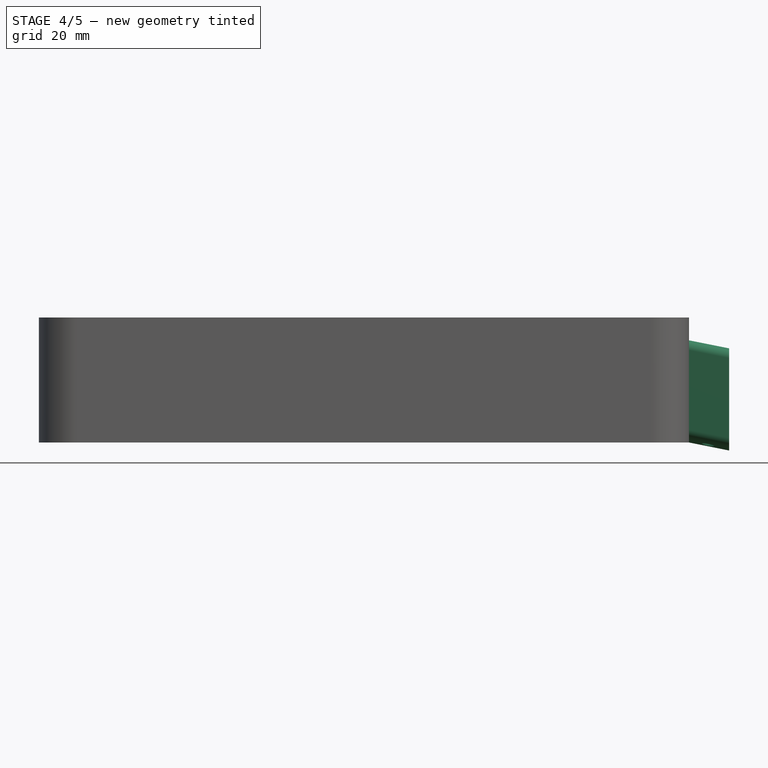
[diagram: stage 4 of 5 — front view after this stage's code; geometry added in this stage tinted green]
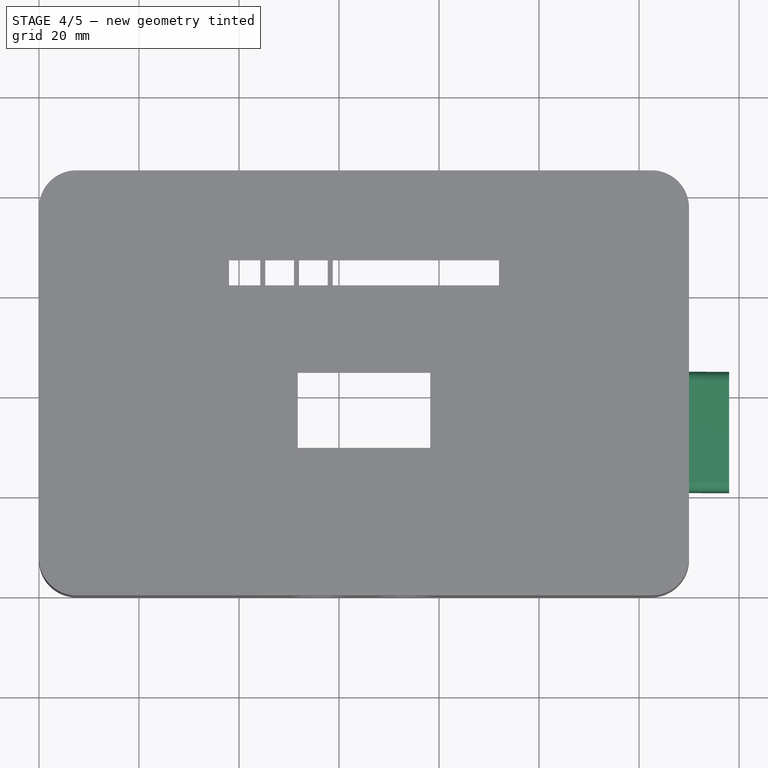
[diagram: stage 4 of 5 — top view after this stage's code; geometry added in this stage tinted green]
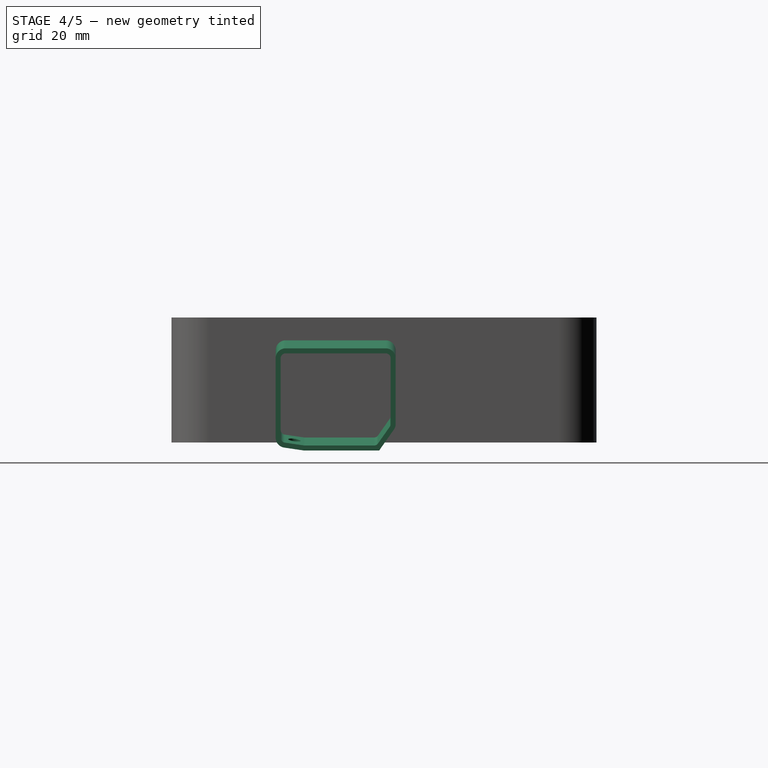
[diagram: stage 4 of 5 — right view after this stage's code; geometry added in this stage tinted green]
FEATURE [PartDesign::Line] HoleAxis_4
  AttacherType = Attacher::AttachEngineLine
  Length = 5.63627
  MapMode = 19
  Placement = pos=(123.366,78.3661,0) rot=(-1,0,0;3.14159rad)
  ResizeMode = 1
  Support = -> [HeatSet004]
FEATURE [PartDesign::Line] Body002_Hole___Switch_1  label="Body002_Hole - Switch 1"
  AttachedBy = Origin
  AttacherType = Attacher::AttachEngineLine
  Length = 15.4997
  Placement = pos=(56.5,0,12.5) rot=(1,0,0;1.5708rad)
  ResizeMode = 1
  SolverId = Asm4EE
  expr: Placement = Body002.Placement * HoleAxis_5.Placement
FEATURE [PartDesign::Line] Body002_Hole___Switch_2  label="Body002_Hole - Switch 2"
  AttachedBy = Origin
  AttacherType = Attacher::AttachEngineLine
  Length = 15.4997
  Placement = pos=(73.5,0,12.5) rot=(1,0,0;1.5708rad)
  ResizeMode = 1
  SolverId = Asm4EE
  expr: Placement = Body002.Placement * HoleAxis_6.Placement
FEATURE [Sketcher::SketchObject] Sketch058  label="Sketch - USBQC"
  FullyConstrained = false
  MapMode = 5
  Placement = pos=(0,0,0) rot=(0.57735,-0.57735,-0.57735;2.0944rad)
  Support = -> [Pocket007]
  sketch-geometry (15):
    g0: ArcOfCircle CenterX=-42.8498 CenterY=2.49276 CenterZ=0 NormalX=0 NormalY=0 NormalZ=1 AngleXU=0 Radius=22.5 StartAngle=4.07369 EndAngle=5.35109
    g1: ArcOfCircle CenterX=-42.8498 CenterY=2.49276 CenterZ=0 NormalX=0 NormalY=0 NormalZ=1 AngleXU=0 Radius=22.5 StartAngle=0.932094 EndAngle=2.2095
    g2: LineSegment StartX=-56.2632 StartY=-15.5718 StartZ=0 EndX=-56.2632 EndY=20.5573 EndZ=0
    g3: LineSegment StartX=-29.4363 StartY=20.5573 StartZ=0 EndX=-29.4363 EndY=-15.5718 EndZ=0
    g4: ArcOfCircle CenterX=-68.8498 CenterY=2.49276 CenterZ=0 NormalX=0 NormalY=0 NormalZ=1 AngleXU=0 Radius=7 StartAngle=2.2095 EndAngle=4.07369
    g5: ArcOfCircle CenterX=-16.8498 CenterY=2.49276 CenterZ=0 NormalX=0 NormalY=0 NormalZ=1 AngleXU=0 Radius=7 StartAngle=5.35109 EndAngle=7.21528
    g6: LineSegment StartX=-73.0228 StartY=8.11285 StartZ=0 EndX=-56.2632 EndY=20.5573 EndZ=0
    g7: LineSegment StartX=-73.0228 StartY=-3.12733 StartZ=0 EndX=-56.2632 EndY=-15.5718 EndZ=0
    g8: LineSegment StartX=-29.4363 StartY=-15.5718 StartZ=0 EndX=-12.6767 EndY=-3.12733 EndZ=0
    g9: LineSegment StartX=-12.6767 StartY=8.11285 StartZ=0 EndX=-29.4363 EndY=20.5573 EndZ=0
    g10: LineSegment StartX=-73.0228 StartY=8.11285 StartZ=0 EndX=-73.0228 EndY=-3.12733 EndZ=0
    g11: LineSegment StartX=-68.8498 StartY=2.49276 StartZ=0 EndX=-16.8498 EndY=2.49276 EndZ=0
    g12: Circle CenterX=-68.8498 CenterY=2.49276 CenterZ=0 NormalX=0 NormalY=0 NormalZ=1 AngleXU=0 Radius=1.75
    g13: Circle CenterX=-16.8498 CenterY=2.49276 CenterZ=0 NormalX=0 NormalY=0 NormalZ=1 AngleXU=0 Radius=1.75
    g14: Circle CenterX=-42.8498 CenterY=20.5573 CenterZ=0 NormalX=0 NormalY=0 NormalZ=1 AngleXU=0 Radius=1.75
  constraints (35):
    c: Coincident(g1,g0)
    c: Coincident(g2,g0)
    c: Coincident(g2,g1)
    c: Vertical(g2)
    c: Coincident(g3,g1)
    c: Vertical(g3)
    c: Coincident(g0,g3)
    c: Coincident(g7,g4)
    c: Coincident(g7,g0)
    c: Coincident(g8,g0)
    c: Coincident(g9,g5)
    c: Coincident(g9,g1)
    c: Coincident(g10,g4)
    c: Coincident(g10,g4)
    c: Vertical(g10)
    c: Symmetric(g0,g1,g0)
    c: Symmetric(g4,g5,g0)
    c: Tangent(g6,g4) = 1.5708
    c: Tangent(g6,g1) = 1.5708
    c: Symmetric(g4,g5,g0)
    c: Coincident(g11,g4)
    c: Coincident(g11,g5)
    c: Horizontal(g11)
    c: Diameter(g1) = 45
    c: Tangent(g8,g5) = -1.5708
    c: DistanceX(g11,g11) = 52
    c: DistanceX(g0) = -42.8498
    c: DistanceY(g0) = 2.49276
    c: Radius(g5) = 7
    c: Coincident(g12,g4)
    c: Coincident(g13,g5)
    c: Equal(g12,g13)
    c: Diameter(g12) = 3.5
    c: Equal(g14,g12)
    c: Symmetric(g1,g1,g14)
FEATURE [Sketcher::SketchObject] Sketch059  label="Sketch - USB-Doppel"
  ExternalGeometry = -> [Pocket007]
  FullyConstrained = true
  MapMode = 5
  Placement = pos=(130,0,0) rot=(0.57735,0.57735,0.57735;2.0944rad)
  Support = -> [Pocket007]
  sketch-geometry (6):
    g0: LineSegment StartX=25.8322 StartY=17 StartZ=0 EndX=39.8322 EndY=17 EndZ=0
    g1: LineSegment StartX=39.8322 StartY=17 StartZ=0 EndX=39.8322 EndY=4 EndZ=0
    g2: LineSegment StartX=39.8322 StartY=4 StartZ=0 EndX=25.8322 EndY=4 EndZ=0
    g3: LineSegment StartX=25.8322 StartY=4 StartZ=0 EndX=25.8322 EndY=17 EndZ=0
    g4: GeomPoint X=15.8322 Y=10.5 Z=0
    g5: LineSegment StartX=15.8322 StartY=10.5 StartZ=0 EndX=25.8322 EndY=10.5 EndZ=0
  constraints (15):
    c: Coincident(g0,g1)
    c: Coincident(g1,g2)
    c: Coincident(g2,g3)
    c: Coincident(g3,g0)
    c: Horizontal(g0)
    c: Horizontal(g2)
    c: Vertical(g1)
    c: Vertical(g3)
    c: Symmetric(g-4,g-4,g4)
    c: Coincident(g5,g4)
    c: Horizontal(g5)
    c: Symmetric(g0,g2,g5)
    c: DistanceX(g0,g0) = 14
    c: DistanceY(g1,g1) = 13
    c: DistanceX(g5,g5) = 10
FEATURE [PartDesign::Pocket] Pocket008  label="Pocket - USB Doppelbuchse"
  BaseFeature = -> Pocket007
  Direction = (-1,0,0)
  Length = 5
  Length2 = 5
  Profile = -> Sketch059
  ReferenceAxis = -> Sketch059 [N_Axis]
  Refine = true
  Type = 2
FEATURE [Sketcher::SketchObject] Sketch060
  ExternalGeometry = -> [Pocket008]
  FullyConstrained = false
  MapMode = 5
  Placement = pos=(130,0,0) rot=(0.57735,0.57735,0.57735;2.0944rad)
  Support = -> [Pocket008]
  sketch-geometry (25):
    g0: LineSegment StartX=21.8322 StartY=2.56602 StartZ=0 EndX=21.8322 EndY=18.4344 EndZ=0
    g1: LineSegment StartX=22.8322 StartY=19.4344 StartZ=0 EndX=42.8322 EndY=19.434 EndZ=0
    g2: LineSegment StartX=43.8322 StartY=18.434 StartZ=0 EndX=43.8322 EndY=5.32236 EndZ=0
    g3: LineSegment StartX=22.685 StartY=1.5769 StartZ=0 EndX=26.49 EndY=1.01088 EndZ=0
    g4: LineSegment StartX=26.6372 StartY=1 StartZ=0 EndX=40.4922 EndY=1 EndZ=0
    g5: LineSegment StartX=41.3098 StartY=1.42418 StartZ=0 EndX=43.6497 EndY=4.74654 EndZ=0
    g6: LineSegment StartX=22.8322 StartY=20.4344 StartZ=0 EndX=42.8322 EndY=20.434 EndZ=0
    g7: LineSegment StartX=44.8322 StartY=18.434 StartZ=0 EndX=44.8322 EndY=5.32236 EndZ=0
    g8: LineSegment StartX=44.4673 StartY=4.17071 StartZ=0 EndX=41.5298 EndY=-2.4e-14 EndZ=0
    g9: LineSegment StartX=41.5298 StartY=-2.4e-14 StartZ=0 EndX=41.5298 EndY=0 EndZ=0
    g10: LineSegment StartX=41.5298 StartY=0 StartZ=0 EndX=26.4892 EndY=0 EndZ=0
    g11: LineSegment StartX=26.4892 StartY=0 StartZ=0 EndX=26.4892 EndY=-6.401e-13 EndZ=0
    g12: LineSegment StartX=26.4892 StartY=-6.401e-13 StartZ=0 EndX=22.5379 EndY=0.587785 EndZ=0
    g13: LineSegment StartX=20.8322 StartY=2.56602 StartZ=0 EndX=20.8322 EndY=18.4344 EndZ=0
    g14: ArcOfCircle CenterX=22.8322 CenterY=18.4344 CenterZ=0 NormalX=0 NormalY=0 NormalZ=1 AngleXU=0 Radius=1 StartAngle=1.57078 EndAngle=3.14159
    g15: ArcOfCircle CenterX=42.8322 CenterY=18.434 CenterZ=0 NormalX=0 NormalY=0 NormalZ=1 AngleXU=0 Radius=1 StartAngle=1.4e-15 EndAngle=1.57078
    g16: ArcOfCircle CenterX=42.8322 CenterY=5.32236 CenterZ=0 NormalX=0 NormalY=0 NormalZ=1 AngleXU=0 Radius=1 StartAngle=5.66957 EndAngle=6.28319
    g17: ArcOfCircle CenterX=22.8322 CenterY=2.56602 CenterZ=0 NormalX=0 NormalY=0 NormalZ=1 AngleXU=0 Radius=1 StartAngle=3.14159 EndAngle=4.56472
    g18: ArcOfCircle CenterX=26.6372 CenterY=2 CenterZ=0 NormalX=0 NormalY=0 NormalZ=1 AngleXU=0 Radius=1 StartAngle=4.56472 EndAngle=4.71239
    g19: ArcOfCircle CenterX=40.4922 CenterY=2 CenterZ=0 NormalX=0 NormalY=0 NormalZ=1 AngleXU=0 Radius=1 StartAngle=4.71239 EndAngle=5.66957
    g20: ArcOfCircle CenterX=22.8322 CenterY=18.4344 CenterZ=0 NormalX=0 NormalY=0 NormalZ=1 AngleXU=0 Radius=2 StartAngle=1.57078 EndAngle=3.14159
    g21: ArcOfCircle CenterX=42.8322 CenterY=18.434 CenterZ=0 NormalX=0 NormalY=0 NormalZ=1 AngleXU=0 Radius=2 StartAngle=-9e-16 EndAngle=1.57078
    g22: ArcOfCircle CenterX=42.8322 CenterY=5.32236 CenterZ=0 NormalX=0 NormalY=0 NormalZ=1 AngleXU=0 Radius=2 StartAngle=5.66957 EndAngle=6.28319
    g23: ArcOfCircle CenterX=22.8322 CenterY=2.56602 CenterZ=0 NormalX=0 NormalY=0 NormalZ=1 AngleXU=0 Radius=2 StartAngle=3.14159 EndAngle=4.56472
    g24: GeomPoint X=32.8322 Y=10.5 Z=0
  constraints (54):
    c: Vertical(g0)
    c: Vertical(g2)
    c: Horizontal(g4)
    c: Vertical(g7)
    c: PointOnObject(g8,g-1)
    c: Coincident(g8,g9)
    c: PointOnObject(g9,g-1)
    c: Vertical(g9)
    c: Coincident(g9,g10)
    c: PointOnObject(g10,g-1)
    c: Coincident(g10,g11)
    c: PointOnObject(g11,g-1)
    c: Vertical(g11)
    c: Coincident(g11,g12)
    c: Vertical(g13)
    c: Parallel(g1,g6)
    c: Parallel(g12,g3)
    c: Parallel(g8,g5)
    c: Tangent(g0,g14) = 1.5708
    c: Tangent(g1,g14) = 1.5708
    c: Tangent(g1,g15) = 1.5708
    c: Tangent(g2,g15) = 1.5708
    c: Tangent(g2,g16) = 1.5708
    c: Tangent(g5,g16) = -1.5708
    c: Tangent(g0,g17) = 1.5708
    c: Tangent(g3,g17) = -1.5708
    c: Tangent(g3,g18) = -1.5708
    c: Tangent(g4,g18) = -1.5708
    c: Tangent(g4,g19) = -1.5708
    c: Tangent(g5,g19) = -1.5708
    c: Equal(g19,g16)
    c: Equal(g16,g15)
    c: Equal(g15,g14)
    c: Equal(g14,g17)
    c: Equal(g17,g18)
    c: Tangent(g6,g20) = 1.5708
    c: Tangent(g13,g20) = 1.5708
    c: Tangent(g6,g21) = 1.5708
    c: Tangent(g7,g21) = 1.5708
    c: Tangent(g7,g22) = 1.5708
    c: Tangent(g8,g22) = 1.5708
    c: Tangent(g12,g23) = 1.5708
    c: Tangent(g13,g23) = 1.5708
    c: DistanceY(g1,g6) = 1
    c: DistanceX(g2,g7) = 1
    c: DistanceY(g10,g4) = 1
    c: Coincident(g14,g20)
    c: Coincident(g23,g17)
    c: Coincident(g22,g16)
    c: Coincident(g15,g21)
    c: Radius(g20) = 2
    c: Symmetric(g-4,g-3,g24)
    c: Symmetric(g15,g17,g24)
    c: DistanceX(g0,g-3) = 4
FEATURE [PartDesign::Pad] Pad002  label="Pad - USB Regenschutz"
  BaseFeature = -> Pocket008
  Direction = (1,0,-0.2)
  Length = 8
  Length2 = 10
  Profile = -> Sketch060
  ReferenceAxis = -> Sketch060 [N_Axis]
  Refine = true
  Type = 0
  UseCustomVector = true
FEATURE [Sketcher::SketchObject] Sketch061
  FullyConstrained = true
  MapMode = 45
  Placement = pos=(134,24.5875,0.493892) rot=(0.026487,0.167104,0.985583;1.60792rad)
  Support = -> [Pad002]
  sketch-geometry (1):
    g0: Circle CenterX=0 CenterY=0 CenterZ=0 NormalX=0 NormalY=0 NormalZ=1 AngleXU=0 Radius=1.25
  constraints (2):
    c: Diameter(g0) = 2.5
    c: Coincident(g0,g-1)
FEATURE [PartDesign::Pocket] Pocket009  label="Pocket - USB Ablaufloch "
  BaseFeature = -> Pad002
  Direction = (-0.194062,-0.144339,-0.970312)
  Length = 5
  Length2 = 5
  Profile = -> Sketch061
  ReferenceAxis = -> Sketch061 [N_Axis]
  Refine = true
  Type = 0
FEATURE [PartDesign::CoordinateSystem] Local_CS  label="LCS_USB"
  AttacherType = Attacher::AttachEngine3D
  MapMode = 1
  Placement = pos=(37.5,71.5,21) rot=(0,0,1;0rad)
  Support = -> [Pocket009]
FEATURE [PartDesign::CoordinateSystem] LCS_1
  AttacherType = Attacher::AttachEngine3D
  MapMode = 1
  Placement = pos=(37.5,71.5,21) rot=(0,0,1;0rad)
  Support = -> [Pocket009]
FEATURE [PartDesign::CoordinateSystem] Front_LCS_USB
  AttachedBy = Origin
  AttacherType = Attacher::AttachEngine3D
  MapMode = 1
  Placement = pos=(110.5,79,21) rot=(0,0,1;0rad)
  SolverId = Asm4EE
  Support = -> [Pocket009]
  expr: Placement = Body002.Placement * Local_CS.Placement
FEATURE [PartDesign::ShapeBinder] ShapeBinder001
  Placement = pos=(8,0,-1.6) rot=(0,0,1;0rad)
  Support = -> [Pocket009]
  TraceSupport = false
FEATURE [PartDesign::Line] HoleAxis_7
  AttacherType = Attacher::AttachEngineLine
  Length = 2.53632
  MapMode = 19
  Placement = pos=(11,17.8322,21) rot=(-1,0,0;3.14159rad)
  ResizeMode = 1
  Support = -> [Sketch008]
FEATURE [PartDesign::Line] HoleAxis_SDCard_L
  AttachedBy = Origin
  AttacherType = Attacher::AttachEngineLine
  Length = 2.53632
  Placement = pos=(11,17.8322,21) rot=(-1,0,0;3.14159rad)
  ResizeMode = 1
  SolverId = Asm4EE
  expr: Placement = Body002.Placement * HoleAxis_7.Placement
FEATURE [PartDesign::ShapeBinder] ShapeBinder
  Support = -> [Pocket009]
  TraceSupport = false
FEATURE [PartDesign::Body] Body002  label="Front"
  Group = -> [Box002,Sketch001,Pocket001,Sketch002,Pocket002,Sketch003,Pocket003,Sketch004,Pad,Sketch005,Pocket004,Sketch007,Pad001,Sketch008,Fillet,Sketch,Pocket,LCS_2,Pocket006,Sketch009,Pocket007,HoleAxis_5,HoleAxis_6,DatumLine,Sketch058,Sketch059,Pocket008,Sketch060,Pad002,Sketch061,Pocket009,Local_CS,LCS_1,ShapeBinder001,HoleAxis_7,ShapeBinder]
  Origin = -> Origin002
  Tip = -> Pocket009
FEATURE [App::Part] Part002  label="Front inkl. Fasteners"
  Group = -> [Body002,HeatSet001,HeatSet002,HeatSet003,LCS_3,HoleAxis_1,HoleAxis_2,HoleAxis_3,HeatSet004,HoleAxis_4,Body002_Hole___Switch_1,Body002_Hole___Switch_2,Front_LCS_USB,HoleAxis_SDCard_L]
  Origin = -> Origin016
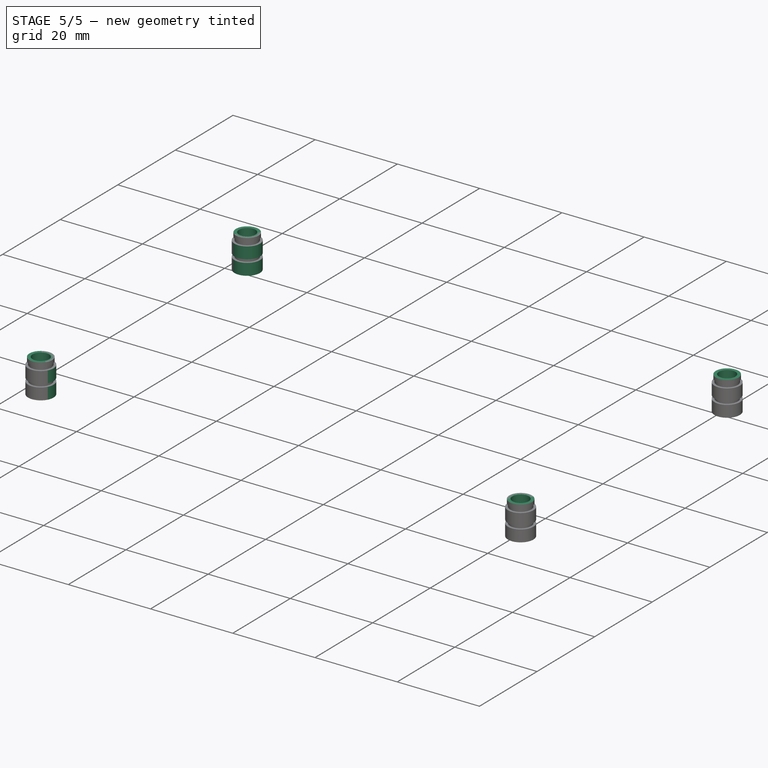
[diagram: stage 5 of 5 — iso view after this stage's code; geometry added in this stage tinted green]
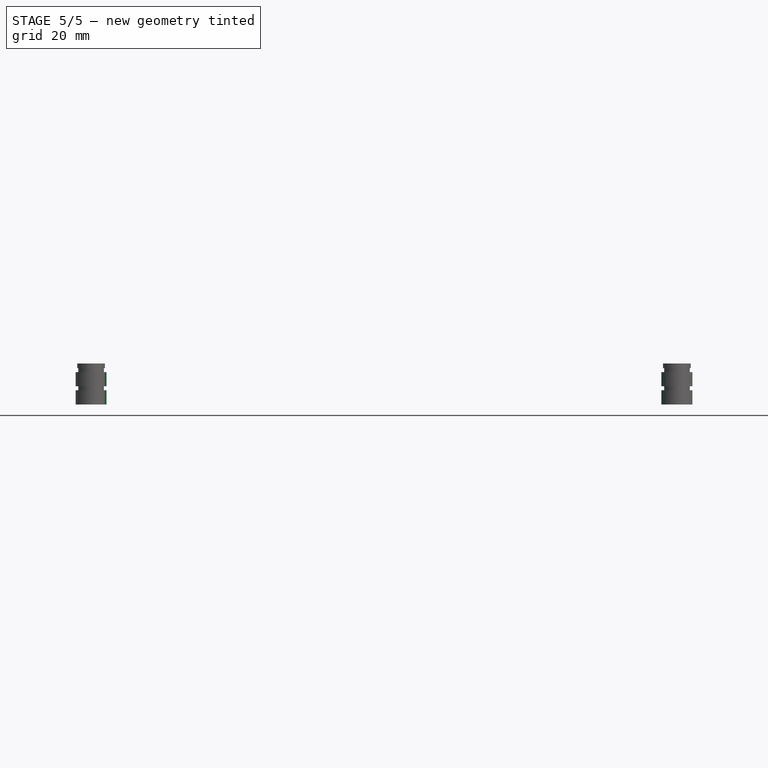
[diagram: stage 5 of 5 — front view after this stage's code; geometry added in this stage tinted green]
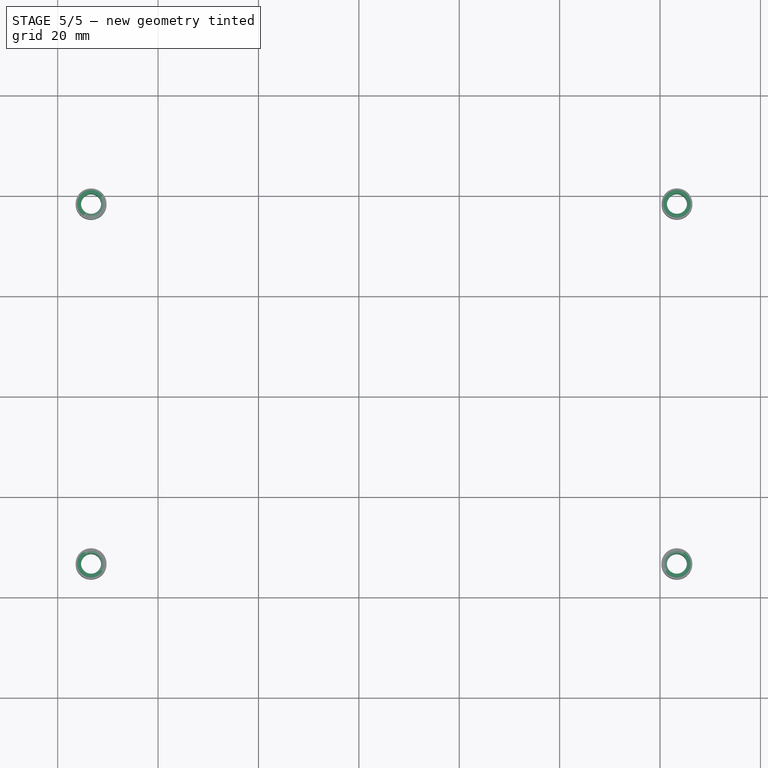
[diagram: stage 5 of 5 — top view after this stage's code; geometry added in this stage tinted green]
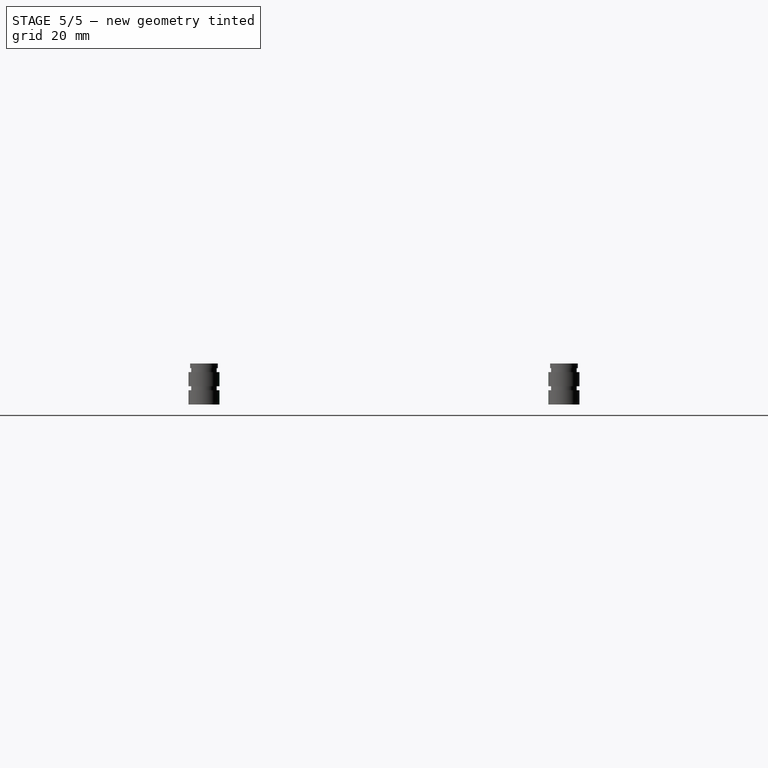
[diagram: stage 5 of 5 — right view after this stage's code; geometry added in this stage tinted green]
FEATURE [Part::FeaturePython] HeatSet002  label="Auto-HeatSet002"  # WARN: FeaturePython — macro-defined, semantics opaque (R4)
  Placement = pos=(6.65146,6.65148,0) rot=(1,0,0;3.14159rad)
  baseObject = -> Body002 [Edge29]
  diameter = 0
  invert = false
  offset = 0
FEATURE [Part::FeaturePython] HeatSet003  label="Auto-HeatSet003"  # WARN: FeaturePython — macro-defined, semantics opaque (R4)
  Placement = pos=(123.349,6.65148,0) rot=(1,0,0;3.14159rad)
  baseObject = -> Body002 [Edge30]
  diameter = 0
  invert = false
  offset = 0
FEATURE [Part::FeaturePython] HeatSet001  label="Auto-HeatSet001"  # WARN: FeaturePython — macro-defined, semantics opaque (R4)
  Placement = pos=(6.65146,78.3485,0) rot=(1,0,0;3.14159rad)
  baseObject = -> Body002 [Edge31]
  diameter = 0
  invert = false
  offset = 0
FEATURE [PartDesign::Line] HoleAxis_5  label="Hole - Switch 1"
  AttacherType = Attacher::AttachEngineLine
  Length = 15.4997
  MapMode = 19
  Placement = pos=(56.5,0,12.5) rot=(1,0,0;1.5708rad)
  ResizeMode = 1
  Support = -> [Pocket007]
FEATURE [PartDesign::Line] HoleAxis_6  label="Hole - Switch 2"
  AttacherType = Attacher::AttachEngineLine
  Length = 15.4997
  MapMode = 19
  Placement = pos=(73.5,0,12.5) rot=(1,0,0;1.5708rad)
  ResizeMode = 1
  Support = -> [Pocket007]
FEATURE [PartDesign::Line] DatumLine
  AttacherType = Attacher::AttachEngineLine
  Length = 20
  MapMode = 42
  Placement = pos=(0,51.9178,22) rot=(0.57735,0.57735,0.57735;2.0944rad)
  ResizeMode = 0
  Support = -> [Pocket007]
FEATURE [Part::FeaturePython] HeatSet004  label="Auto-HeatSet004"  # WARN: FeaturePython — macro-defined, semantics opaque (R4)
  Placement = pos=(123.366,78.3661,0) rot=(1,0,0;3.14159rad)
  baseObject = -> Pocket009 [Edge63]
  diameter = 0
  invert = false
  offset = 0
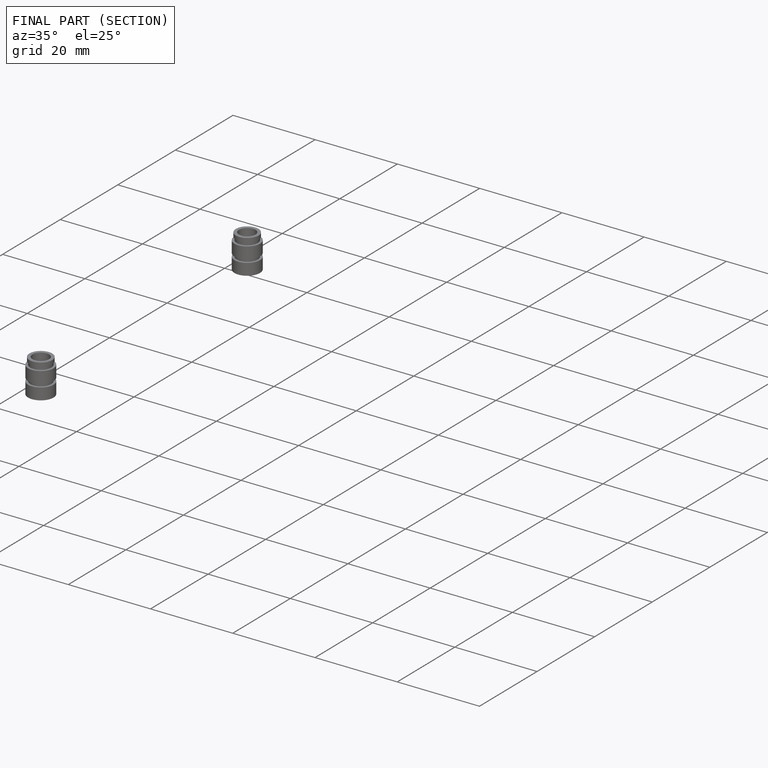
[diagram: finished part — half-section view (interior)]
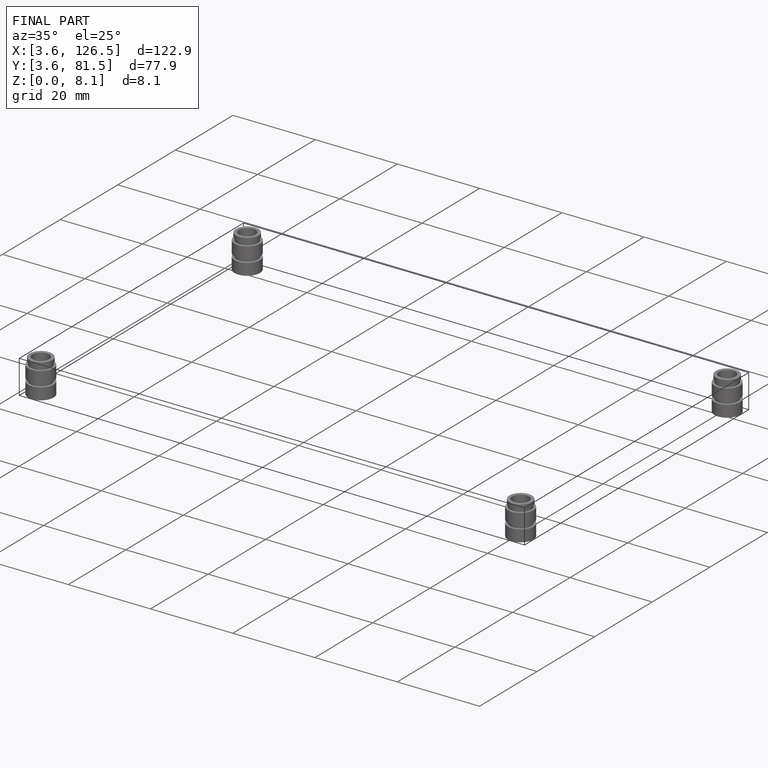
[diagram: finished part — iso view with bounding-box wireframe]
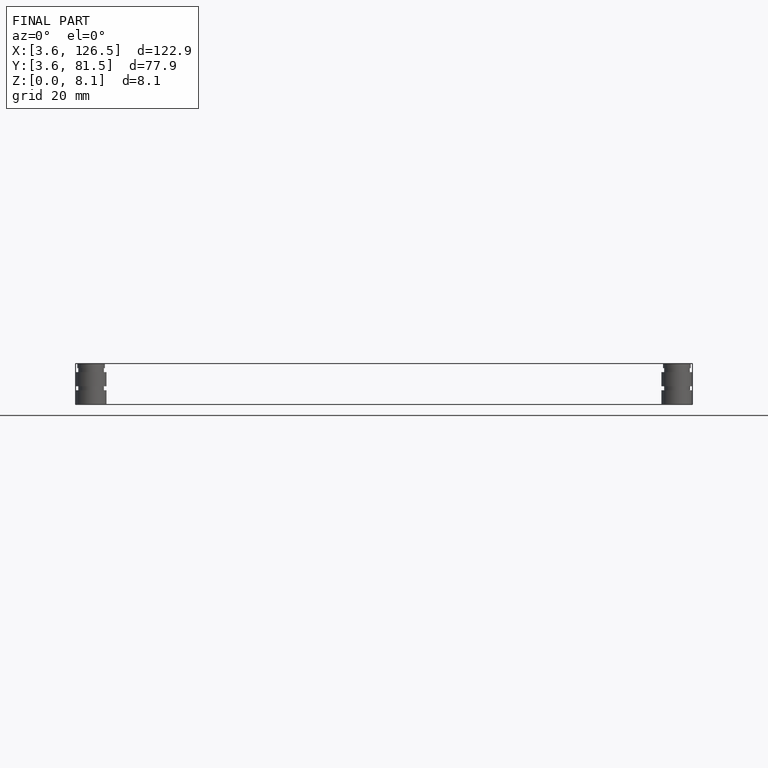
[diagram: finished part — front view with bounding-box wireframe]
